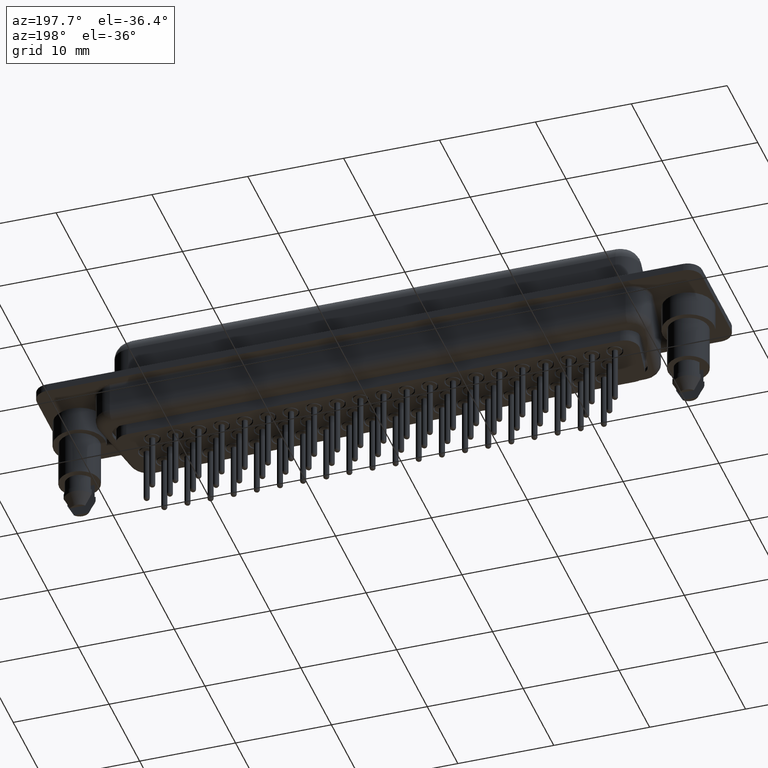
[diagram: clean part render]
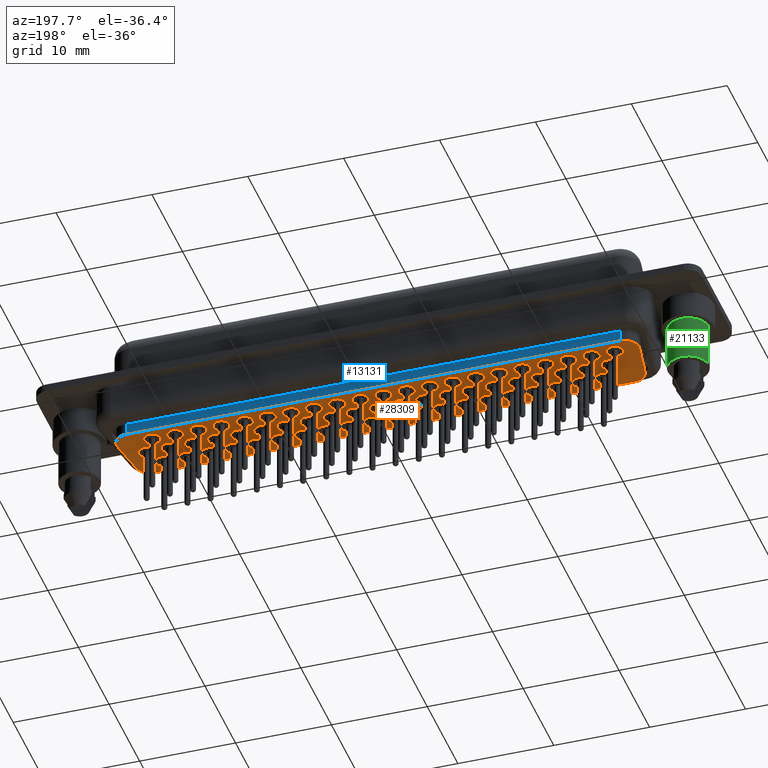
[diagram: same view with three faces highlighted in distinct colors, each labeled with its STEP entity id]
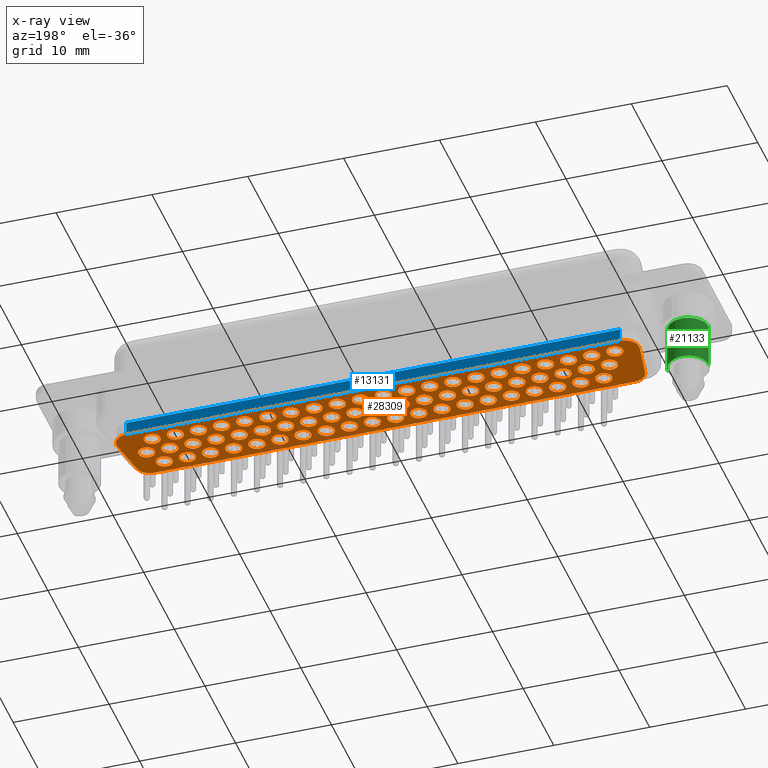
[diagram: x-ray of the same camera — body ghosted, the three highlighted faces saturated]
A machine part, auxiliary view with three faces highlighted in distinct colors.
The next image is the same camera in x-ray (body ghosted, the three faces saturated) — at least one of them is partly hidden behind the body in this view.
Their STEP definitions:

[orange] entity #28309 — the highlighted planar face has unit normal (0, 0, 1).
#2 = DIRECTION ( 'NONE',  ( 0.0000000000000000000, 0.0000000000000000000, -1.000000000000000000 ) ) ;
#4 = CARTESIAN_POINT ( 'NONE',  ( 37.55480000000001439, 1.979999999999997762, -5.500000000000000000 ) ) ;
#30 = AXIS2_PLACEMENT_3D ( 'NONE', #6025, #5643, #20327 ) ;
#48 = DIRECTION ( 'NONE',  ( 0.0000000000000000000, -0.0000000000000000000, 1.000000000000000000 ) ) ;
#80 = EDGE_CURVE ( 'NONE', #13756, #16273, #17759, .T. ) ;
#99 = CIRCLE ( 'NONE', #10198, 0.8500000000000000888 ) ;
#112 = CIRCLE ( 'NONE', #22052, 1.500000000000000444 ) ;
#168 = CARTESIAN_POINT ( 'NONE',  ( 20.30730000000002278, -4.432609089513841811E-15, -5.500000000000000000 ) ) ;
#179 = DIRECTION ( 'NONE',  ( 1.000000000000000000, 0.0000000000000000000, 0.0000000000000000000 ) ) ;
#196 = EDGE_CURVE ( 'NONE', #19016, #18114, #29525, .T. ) ;
#256 = CIRCLE ( 'NONE', #24054, 0.8500000000000000888 ) ;
#259 = DIRECTION ( 'NONE',  ( 1.000000000000000000, 0.0000000000000000000, 0.0000000000000000000 ) ) ;
#266 = DIRECTION ( 'NONE',  ( 1.000000000000000000, 0.0000000000000000000, 0.0000000000000000000 ) ) ;
#273 = AXIS2_PLACEMENT_3D ( 'NONE', #16627, #28537, #8196 ) ;
#302 = FACE_BOUND ( 'NONE', #36292, .T. ) ;
#381 = CARTESIAN_POINT ( 'NONE',  ( 23.57030000000002090, -4.137101816879585533E-15, -5.500000000000000000 ) ) ;
#392 = ORIENTED_EDGE ( 'NONE', *, *, #35037, .T. ) ;
#394 = CARTESIAN_POINT ( 'NONE',  ( 50.46979999999999933, 1.979999999999999538, -5.500000000000000000 ) ) ;
#396 = CARTESIAN_POINT ( 'NONE',  ( 52.88280000000000314, 1.979999999999999538, -5.500000000000000000 ) ) ;
#404 = CARTESIAN_POINT ( 'NONE',  ( 15.48130000000002404, -5.023623634782354368E-15, -5.500000000000000000 ) ) ;
#484 = EDGE_CURVE ( 'NONE', #12904, #15636, #36418, .T. ) ;
#489 = CIRCLE ( 'NONE', #22427, 0.8499999999999965361 ) ;
#491 = VERTEX_POINT ( 'NONE', #10990 ) ;
#534 = CIRCLE ( 'NONE', #17458, 0.8499999999999965361 ) ;
#568 = DIRECTION ( 'NONE',  ( 0.0000000000000000000, -0.0000000000000000000, 1.000000000000000000 ) ) ;
#569 = DIRECTION ( 'NONE',  ( 0.0000000000000000000, -0.0000000000000000000, 1.000000000000000000 ) ) ;
#631 = CIRCLE ( 'NONE', #30646, 0.8499999999999965361 ) ;
#669 = CARTESIAN_POINT ( 'NONE',  ( 46.49380000000000024, 1.979999999999998650, -5.500000000000000000 ) ) ;
#735 = VERTEX_POINT ( 'NONE', #33085 ) ;
#759 = DIRECTION ( 'NONE',  ( 0.0000000000000000000, -0.0000000000000000000, 1.000000000000000000 ) ) ;
#789 = EDGE_LOOP ( 'NONE', ( #11648, #21686 ) ) ;
#792 = CARTESIAN_POINT ( 'NONE',  ( 27.54630000000001644, -3.546087271611073765E-15, -5.500000000000000000 ) ) ;
#825 = DIRECTION ( 'NONE',  ( 1.000000000000000000, 0.0000000000000000000, 0.0000000000000000000 ) ) ;
#834 = AXIS2_PLACEMENT_3D ( 'NONE', #8481, #18064, #26478 ) ;
#856 = AXIS2_PLACEMENT_3D ( 'NONE', #23733, #568, #36395 ) ;
#858 = CARTESIAN_POINT ( 'NONE',  ( 27.90280000000001692, -1.980000000000001315, -5.500000000000000000 ) ) ;
#935 = CARTESIAN_POINT ( 'NONE',  ( 48.90679999999999694, -1.979999999999999094, -5.500000000000000000 ) ) ;
#945 = VERTEX_POINT ( 'NONE', #13148 ) ;
#958 = ORIENTED_EDGE ( 'NONE', *, *, #16393, .T. ) ;
#963 = CARTESIAN_POINT ( 'NONE',  ( 17.53780000000002204, 1.979999999999995319, -5.500000000000000000 ) ) ;
#981 = DIRECTION ( 'NONE',  ( 0.0000000000000000000, -0.0000000000000000000, 1.000000000000000000 ) ) ;
#989 = CARTESIAN_POINT ( 'NONE',  ( 20.30730000000002278, -4.432609089513841811E-15, -5.500000000000000000 ) ) ;
#1044 = DIRECTION ( 'NONE',  ( 1.000000000000000000, 0.0000000000000000000, 0.0000000000000000000 ) ) ;
#1071 = ORIENTED_EDGE ( 'NONE', *, *, #30705, .T. ) ;
#1149 = VERTEX_POINT ( 'NONE', #37791 ) ;
#1152 = DIRECTION ( 'NONE',  ( 1.000000000000000000, 0.0000000000000000000, 0.0000000000000000000 ) ) ;
#1239 = CARTESIAN_POINT ( 'NONE',  ( 20.66380000000001971, 1.979999999999995541, -5.500000000000000000 ) ) ;
#1291 = DIRECTION ( 'NONE',  ( 1.000000000000000000, 0.0000000000000000000, 0.0000000000000000000 ) ) ;
#1365 = CARTESIAN_POINT ( 'NONE',  ( 43.23080000000000922, 1.979999999999998650, -5.500000000000000000 ) ) ;
#1418 = DIRECTION ( 'NONE',  ( 1.000000000000000000, 0.0000000000000000000, 0.0000000000000000000 ) ) ;
#1498 = AXIS2_PLACEMENT_3D ( 'NONE', #28704, #14442, #23260 ) ;
#1509 = FACE_BOUND ( 'NONE', #8516, .T. ) ;
#1563 = CARTESIAN_POINT ( 'NONE',  ( 39.96780000000001110, -1.979999999999999982, -5.500000000000000000 ) ) ;
#1607 = VERTEX_POINT ( 'NONE', #669 ) ;
#1629 = ORIENTED_EDGE ( 'NONE', *, *, #36725, .T. ) ;
#1636 = AXIS2_PLACEMENT_3D ( 'NONE', #15589, #13419, #27517 ) ;
#1658 = CIRCLE ( 'NONE', #27922, 0.8500000000000000888 ) ;
#1694 = CIRCLE ( 'NONE', #23634, 0.8499999999999965361 ) ;
#1701 = FACE_BOUND ( 'NONE', #31528, .T. ) ;
#1704 = ORIENTED_EDGE ( 'NONE', *, *, #16012, .T. ) ;
#1711 = CARTESIAN_POINT ( 'NONE',  ( 55.65230000000000388, 1.040949779275252975E-16, -5.500000000000000000 ) ) ;
#1723 = EDGE_LOOP ( 'NONE', ( #17380, #5745, #36098, #26323, #34397, #32587, #30226, #33776, #1629 ) ) ;
#1724 = CARTESIAN_POINT ( 'NONE',  ( 19.45730000000002136, -4.328514111586317093E-15, -5.500000000000000000 ) ) ;
#1857 = DIRECTION ( 'NONE',  ( 0.0000000000000000000, -0.0000000000000000000, 1.000000000000000000 ) ) ;
#1913 = ORIENTED_EDGE ( 'NONE', *, *, #31781, .T. ) ;
#1925 = DIRECTION ( 'NONE',  ( 1.000000000000000000, -5.052756787988973582E-17, -0.0000000000000000000 ) ) ;
#1927 = CIRCLE ( 'NONE', #13850, 0.8500000000000000888 ) ;
#1946 = CARTESIAN_POINT ( 'NONE',  ( 17.89430000000002252, -4.728116362148098090E-15, -5.500000000000000000 ) ) ;
#1956 = EDGE_LOOP ( 'NONE', ( #7181, #30420 ) ) ;
#2011 = AXIS2_PLACEMENT_3D ( 'NONE', #792, #33884, #9638 ) ;
#2037 = AXIS2_PLACEMENT_3D ( 'NONE', #14213, #2638, #25936 ) ;
#2067 = DIRECTION ( 'NONE',  ( 0.0000000000000000000, -0.0000000000000000000, 1.000000000000000000 ) ) ;
#2089 = FACE_BOUND ( 'NONE', #37926, .T. ) ;
#2138 = ORIENTED_EDGE ( 'NONE', *, *, #17275, .T. ) ;
#2196 = DIRECTION ( 'NONE',  ( 0.0000000000000000000, -0.0000000000000000000, 1.000000000000000000 ) ) ;
#2297 = EDGE_CURVE ( 'NONE', #14975, #15268, #24981, .T. ) ;
#2300 = FACE_BOUND ( 'NONE', #30714, .T. ) ;
#2359 = VERTEX_POINT ( 'NONE', #6252 ) ;
#2370 = AXIS2_PLACEMENT_3D ( 'NONE', #10825, #20020, #28603 ) ;
#2392 = CARTESIAN_POINT ( 'NONE',  ( 46.85030000000000427, -1.182029090537024522E-15, -5.500000000000000000 ) ) ;
#2464 = LINE ( 'NONE', #20699, #22733 ) ;
#2495 = CARTESIAN_POINT ( 'NONE',  ( 44.79380000000001161, -1.979999999999999538, -5.500000000000000000 ) ) ;
#2498 = ORIENTED_EDGE ( 'NONE', *, *, #33686, .T. ) ;
#2526 = ORIENTED_EDGE ( 'NONE', *, *, #28976, .T. ) ;
#2534 = CARTESIAN_POINT ( 'NONE',  ( 49.61980000000000501, -1.979999999999998650, -5.500000000000000000 ) ) ;
#2591 = DIRECTION ( 'NONE',  ( 0.0000000000000000000, -0.0000000000000000000, 1.000000000000000000 ) ) ;
#2638 = DIRECTION ( 'NONE',  ( 0.0000000000000000000, -0.0000000000000000000, 1.000000000000000000 ) ) ;
#2652 = CIRCLE ( 'NONE', #23944, 0.8500000000000000888 ) ;
#2681 = DIRECTION ( 'NONE',  ( 1.000000000000000000, 0.0000000000000000000, 0.0000000000000000000 ) ) ;
#2686 = CIRCLE ( 'NONE', #25214, 0.8499999999999965361 ) ;
#2775 = ORIENTED_EDGE ( 'NONE', *, *, #27028, .T. ) ;
#2782 = DIRECTION ( 'NONE',  ( 1.000000000000000000, 0.0000000000000000000, 0.0000000000000000000 ) ) ;
#2787 = AXIS2_PLACEMENT_3D ( 'NONE', #28924, #5065, #4875 ) ;
#2875 = FACE_BOUND ( 'NONE', #32975, .T. ) ;
#2879 = CARTESIAN_POINT ( 'NONE',  ( 19.95080000000002229, 1.979999999999995541, -5.500000000000000000 ) ) ;
#2924 = ORIENTED_EDGE ( 'NONE', *, *, #17884, .T. ) ;
#2942 = CARTESIAN_POINT ( 'NONE',  ( 57.49916350763892581, 2.000000000000008882, -5.500000000000000000 ) ) ;
#3031 = CARTESIAN_POINT ( 'NONE',  ( 50.82630000000000337, -4.869195673409869514E-16, -5.500000000000000000 ) ) ;
#3048 = AXIS2_PLACEMENT_3D ( 'NONE', #26266, #19824, #11020 ) ;
#3068 = EDGE_LOOP ( 'NONE', ( #5025, #33436 ) ) ;
#3070 = FACE_OUTER_BOUND ( 'NONE', #1723, .T. ) ;
#3087 = EDGE_LOOP ( 'NONE', ( #23707, #2924 ) ) ;
#3091 = VERTEX_POINT ( 'NONE', #26309 ) ;
#3140 = DIRECTION ( 'NONE',  ( -1.000000000000000000, 0.0000000000000000000, 0.0000000000000000000 ) ) ;
#3157 = AXIS2_PLACEMENT_3D ( 'NONE', #4895, #16853, #21977 ) ;
#3171 = DIRECTION ( 'NONE',  ( 0.0000000000000000000, -0.0000000000000000000, 1.000000000000000000 ) ) ;
#3202 = VERTEX_POINT ( 'NONE', #26892 ) ;
#3251 = CIRCLE ( 'NONE', #34482, 0.8499999999999965361 ) ;
#3262 = CARTESIAN_POINT ( 'NONE',  ( 13.06830000000002556, -5.319130907416610647E-15, -5.500000000000000000 ) ) ;
#3268 = AXIS2_PLACEMENT_3D ( 'NONE', #20828, #32746, #32942 ) ;
#3271 = CARTESIAN_POINT ( 'NONE',  ( 47.70029999999999859, -1.182029090537024522E-15, -5.500000000000000000 ) ) ;
#3278 = ORIENTED_EDGE ( 'NONE', *, *, #26770, .T. ) ;
#3318 = CARTESIAN_POINT ( 'NONE',  ( 31.16580000000001505, -1.980000000000001315, -5.500000000000000000 ) ) ;
#3329 = EDGE_CURVE ( 'NONE', #18246, #19578, #32056, .T. ) ;
#3398 = DIRECTION ( 'NONE',  ( 0.0000000000000000000, -0.0000000000000000000, 1.000000000000000000 ) ) ;
#3406 = EDGE_LOOP ( 'NONE', ( #26818, #14836 ) ) ;
#3412 = ORIENTED_EDGE ( 'NONE', *, *, #33375, .T. ) ;
#3414 = CARTESIAN_POINT ( 'NONE',  ( 41.66780000000000683, 1.979999999999998206, -5.500000000000000000 ) ) ;
#3441 = CIRCLE ( 'NONE', #19685, 0.8500000000000000888 ) ;
#3472 = AXIS2_PLACEMENT_3D ( 'NONE', #4528, #24920, #34285 ) ;
#3488 = DIRECTION ( 'NONE',  ( 0.0000000000000000000, -0.0000000000000000000, 1.000000000000000000 ) ) ;
#3513 = CIRCLE ( 'NONE', #9382, 0.8499999999999965361 ) ;
#3515 = VERTEX_POINT ( 'NONE', #20208 ) ;
#3580 = EDGE_LOOP ( 'NONE', ( #4402, #2498 ) ) ;
#3598 = VERTEX_POINT ( 'NONE', #28601 ) ;
#3658 = CARTESIAN_POINT ( 'NONE',  ( 40.81780000000000541, -1.979999999999999982, -5.500000000000000000 ) ) ;
#3690 = DIRECTION ( 'NONE',  ( 0.0000000000000000000, -0.0000000000000000000, 1.000000000000000000 ) ) ;
#3739 = VERTEX_POINT ( 'NONE', #14530 ) ;
#3765 = EDGE_CURVE ( 'NONE', #4903, #22930, #32619, .T. ) ;
#3786 = ORIENTED_EDGE ( 'NONE', *, *, #9794, .T. ) ;
#3790 = EDGE_CURVE ( 'NONE', #35138, #3898, #99, .T. ) ;
#3809 = DIRECTION ( 'NONE',  ( 1.000000000000000000, 0.0000000000000000000, 0.0000000000000000000 ) ) ;
#3824 = ORIENTED_EDGE ( 'NONE', *, *, #34907, .T. ) ;
#3891 = CARTESIAN_POINT ( 'NONE',  ( 52.03280000000000172, -1.979999999999998650, -5.500000000000000000 ) ) ;
#3898 = VERTEX_POINT ( 'NONE', #963 ) ;
#3925 = EDGE_CURVE ( 'NONE', #14661, #34690, #34848, .T. ) ;
#3926 = ORIENTED_EDGE ( 'NONE', *, *, #4745, .T. ) ;
#3951 = CARTESIAN_POINT ( 'NONE',  ( 57.49916350763892581, 3.500000000000009326, -5.500000000000000000 ) ) ;
#3955 = DIRECTION ( 'NONE',  ( 0.0000000000000000000, -0.0000000000000000000, 1.000000000000000000 ) ) ;
#3989 = DIRECTION ( 'NONE',  ( 1.000000000000000000, 0.0000000000000000000, 0.0000000000000000000 ) ) ;
#4026 = CIRCLE ( 'NONE', #35921, 0.8499999999999965361 ) ;
#4033 = VERTEX_POINT ( 'NONE', #23510 ) ;
#4061 = CARTESIAN_POINT ( 'NONE',  ( 52.88280000000000314, -1.979999999999998650, -5.500000000000000000 ) ) ;
#4125 = CARTESIAN_POINT ( 'NONE',  ( 13.42480000000002427, -1.980000000000003535, -5.500000000000000000 ) ) ;
#4154 = VERTEX_POINT ( 'NONE', #35218 ) ;
#4196 = CIRCLE ( 'NONE', #19211, 0.8500000000000000888 ) ;
#4202 = DIRECTION ( 'NONE',  ( 1.000000000000000000, 0.0000000000000000000, 0.0000000000000000000 ) ) ;
#4334 = CARTESIAN_POINT ( 'NONE',  ( 43.23080000000000922, -1.979999999999999538, -5.500000000000000000 ) ) ;
#4369 = CARTESIAN_POINT ( 'NONE',  ( 43.23080000000000922, -1.979999999999999538, -5.500000000000000000 ) ) ;
#4388 = CIRCLE ( 'NONE', #8140, 0.8499999999999965361 ) ;
#4402 = ORIENTED_EDGE ( 'NONE', *, *, #13802, .T. ) ;
#4418 = CARTESIAN_POINT ( 'NONE',  ( 33.57880000000001530, -1.980000000000000870, -5.500000000000000000 ) ) ;
#4456 = FACE_BOUND ( 'NONE', #3406, .T. ) ;
#4489 = EDGE_CURVE ( 'NONE', #35273, #29439, #11554, .T. ) ;
#4528 = CARTESIAN_POINT ( 'NONE',  ( 35.99180000000001201, -1.980000000000000426, -5.500000000000000000 ) ) ;
#4574 = CIRCLE ( 'NONE', #32726, 0.8499999999999965361 ) ;
#4603 = CARTESIAN_POINT ( 'NONE',  ( 45.64380000000000592, -1.979999999999999538, -5.500000000000000000 ) ) ;
#4618 = CARTESIAN_POINT ( 'NONE',  ( 33.57880000000001530, -1.980000000000000870, -5.500000000000000000 ) ) ;
#4637 = ORIENTED_EDGE ( 'NONE', *, *, #19360, .T. ) ;
#4682 = CIRCLE ( 'NONE', #38448, 0.8499999999999965361 ) ;
#4686 = DIRECTION ( 'NONE',  ( 0.0000000000000000000, -0.0000000000000000000, 1.000000000000000000 ) ) ;
#4738 = CIRCLE ( 'NONE', #27221, 0.8500000000000000888 ) ;
#4745 = EDGE_CURVE ( 'NONE', #16562, #9353, #4388, .T. ) ;
#4819 = CIRCLE ( 'NONE', #11719, 0.8500000000000000888 ) ;
#4826 = EDGE_CURVE ( 'NONE', #6442, #30453, #631, .T. ) ;
#4850 = CARTESIAN_POINT ( 'NONE',  ( 48.41330000000000666, -7.824268399752431313E-16, -5.500000000000000000 ) ) ;
#4875 = DIRECTION ( 'NONE',  ( 1.000000000000000000, 0.0000000000000000000, 0.0000000000000000000 ) ) ;
#4895 = CARTESIAN_POINT ( 'NONE',  ( 8.242300000000028604, -5.910145452685123204E-15, -5.500000000000000000 ) ) ;
#4903 = VERTEX_POINT ( 'NONE', #29204 ) ;
#4920 = ORIENTED_EDGE ( 'NONE', *, *, #9892, .T. ) ;
#4933 = AXIS2_PLACEMENT_3D ( 'NONE', #33117, #35850, #30167 ) ;
#4987 = DIRECTION ( 'NONE',  ( 0.0000000000000000000, -0.0000000000000000000, 1.000000000000000000 ) ) ;
#4996 = CIRCLE ( 'NONE', #26880, 0.8499999999999965361 ) ;
#5015 = VERTEX_POINT ( 'NONE', #14734 ) ;
#5020 = ORIENTED_EDGE ( 'NONE', *, *, #19491, .T. ) ;
#5025 = ORIENTED_EDGE ( 'NONE', *, *, #23842, .T. ) ;
#5038 = EDGE_CURVE ( 'NONE', #13326, #10299, #34935, .T. ) ;
#5043 = FACE_BOUND ( 'NONE', #16465, .T. ) ;
#5057 = CARTESIAN_POINT ( 'NONE',  ( 19.10080000000002087, 1.979999999999995541, -5.500000000000000000 ) ) ;
#5065 = DIRECTION ( 'NONE',  ( 0.0000000000000000000, -0.0000000000000000000, 1.000000000000000000 ) ) ;
#5086 = EDGE_CURVE ( 'NONE', #23038, #2359, #16336, .T. ) ;
#5108 = EDGE_CURVE ( 'NONE', #30453, #6442, #16309, .T. ) ;
#5134 = CARTESIAN_POINT ( 'NONE',  ( 36.34830000000001604, -2.259963203146523932E-15, -5.500000000000000000 ) ) ;
#5213 = AXIS2_PLACEMENT_3D ( 'NONE', #26461, #29581, #34871 ) ;
#5226 = VERTEX_POINT ( 'NONE', #2534 ) ;
#5244 = FACE_BOUND ( 'NONE', #22616, .T. ) ;
#5307 = ORIENTED_EDGE ( 'NONE', *, *, #23110, .T. ) ;
#5336 = EDGE_LOOP ( 'NONE', ( #35941, #33965 ) ) ;
#5338 = DIRECTION ( 'NONE',  ( 0.0000000000000000000, -0.0000000000000000000, 1.000000000000000000 ) ) ;
#5342 = EDGE_LOOP ( 'NONE', ( #8033, #28224 ) ) ;
#5344 = VERTEX_POINT ( 'NONE', #37384 ) ;
#5351 = CARTESIAN_POINT ( 'NONE',  ( 56.14579999999999416, -1.979999999999998206, -5.500000000000000000 ) ) ;
#5403 = DIRECTION ( 'NONE',  ( 0.0000000000000000000, -0.0000000000000000000, 1.000000000000000000 ) ) ;
#5425 = VERTEX_POINT ( 'NONE', #18197 ) ;
#5439 = AXIS2_PLACEMENT_3D ( 'NONE', #26888, #48, #21041 ) ;
#5471 = DIRECTION ( 'NONE',  ( 1.000000000000000000, 0.0000000000000000000, 0.0000000000000000000 ) ) ;
#5504 = VERTEX_POINT ( 'NONE', #9205 ) ;
#5532 = CIRCLE ( 'NONE', #27388, 0.8499999999999965361 ) ;
#5586 = EDGE_LOOP ( 'NONE', ( #3278, #36669 ) ) ;
#5643 = DIRECTION ( 'NONE',  ( 0.0000000000000000000, -0.0000000000000000000, 1.000000000000000000 ) ) ;
#5662 = AXIS2_PLACEMENT_3D ( 'NONE', #396, #36237, #6119 ) ;
#5680 = AXIS2_PLACEMENT_3D ( 'NONE', #12476, #21301, #27699 ) ;
#5709 = CARTESIAN_POINT ( 'NONE',  ( 17.89430000000002252, -4.728116362148098090E-15, -5.500000000000000000 ) ) ;
#5711 = CIRCLE ( 'NONE', #18217, 0.8500000000000000888 ) ;
#5712 = CIRCLE ( 'NONE', #22600, 0.8500000000000000888 ) ;
#5745 = ORIENTED_EDGE ( 'NONE', *, *, #29752, .T. ) ;
#5756 = AXIS2_PLACEMENT_3D ( 'NONE', #27590, #759, #24678 ) ;
#5783 = CARTESIAN_POINT ( 'NONE',  ( 44.08080000000000354, -1.979999999999999538, -5.500000000000000000 ) ) ;
#5798 = CARTESIAN_POINT ( 'NONE',  ( 42.38080000000000780, -1.979999999999999538, -5.500000000000000000 ) ) ;
#5817 = ORIENTED_EDGE ( 'NONE', *, *, #33770, .T. ) ;
#5845 = AXIS2_PLACEMENT_3D ( 'NONE', #32699, #36010, #12345 ) ;
#5865 = ORIENTED_EDGE ( 'NONE', *, *, #34852, .T. ) ;
#5918 = DIRECTION ( 'NONE',  ( 0.0000000000000000000, -0.0000000000000000000, 1.000000000000000000 ) ) ;
#5945 = CARTESIAN_POINT ( 'NONE',  ( 33.93530000000001223, -2.555470475780780211E-15, -5.500000000000000000 ) ) ;
#5959 = VERTEX_POINT ( 'NONE', #28348 ) ;
#5980 = AXIS2_PLACEMENT_3D ( 'NONE', #18086, #33147, #24532 ) ;
#6002 = EDGE_CURVE ( 'NONE', #31863, #38310, #28849, .T. ) ;
#6025 = CARTESIAN_POINT ( 'NONE',  ( 6.000836492361083074, 2.000000000000011546, -5.500000000000000000 ) ) ;
#6066 = AXIS2_PLACEMENT_3D ( 'NONE', #13861, #37736, #25790 ) ;
#6119 = DIRECTION ( 'NONE',  ( 1.000000000000000000, 0.0000000000000000000, 0.0000000000000000000 ) ) ;
#6132 = ORIENTED_EDGE ( 'NONE', *, *, #17007, .T. ) ;
#6220 = CIRCLE ( 'NONE', #21205, 0.8500000000000000888 ) ;
#6252 = CARTESIAN_POINT ( 'NONE',  ( 51.31980000000000075, 1.979999999999999538, -5.500000000000000000 ) ) ;
#6263 = CARTESIAN_POINT ( 'NONE',  ( 32.01580000000001291, 1.979999999999996874, -5.500000000000000000 ) ) ;
#6324 = CIRCLE ( 'NONE', #5680, 0.8500000000000000888 ) ;
#6372 = DIRECTION ( 'NONE',  ( 0.0000000000000000000, -0.0000000000000000000, 1.000000000000000000 ) ) ;
#6384 = ORIENTED_EDGE ( 'NONE', *, *, #32188, .T. ) ;
#6390 = EDGE_CURVE ( 'NONE', #5425, #5015, #14527, .T. ) ;
#6440 = CARTESIAN_POINT ( 'NONE',  ( 6.000836492361084851, 3.500000000000011990, -5.500000000000000000 ) ) ;
#6442 = VERTEX_POINT ( 'NONE', #22668 ) ;
#6468 = EDGE_CURVE ( 'NONE', #22451, #11418, #8262, .T. ) ;
#6481 = CIRCLE ( 'NONE', #26454, 0.8499999999999965361 ) ;
#6544 = CARTESIAN_POINT ( 'NONE',  ( 11.86180000000002721, -1.980000000000003535, -5.500000000000000000 ) ) ;
#6613 = VERTEX_POINT ( 'NONE', #17381 ) ;
#6617 = DIRECTION ( 'NONE',  ( 0.0000000000000000000, -0.0000000000000000000, 1.000000000000000000 ) ) ;
#6618 = CIRCLE ( 'NONE', #9747, 0.8500000000000000888 ) ;
#6630 = CARTESIAN_POINT ( 'NONE',  ( 50.46979999999999933, -1.979999999999998650, -5.500000000000000000 ) ) ;
#6644 = ORIENTED_EDGE ( 'NONE', *, *, #17691, .T. ) ;
#6647 = DIRECTION ( 'NONE',  ( 1.000000000000000000, 0.0000000000000000000, 0.0000000000000000000 ) ) ;
#6666 = AXIS2_PLACEMENT_3D ( 'NONE', #3318, #18959, #30135 ) ;
#6692 = CARTESIAN_POINT ( 'NONE',  ( 25.48980000000001667, -1.980000000000001759, -5.500000000000000000 ) ) ;
#6718 = AXIS2_PLACEMENT_3D ( 'NONE', #28930, #4686, #5471 ) ;
#6728 = VERTEX_POINT ( 'NONE', #23451 ) ;
#6783 = ORIENTED_EDGE ( 'NONE', *, *, #31324, .T. ) ;
#6797 = DIRECTION ( 'NONE',  ( 1.000000000000000000, 0.0000000000000000000, 0.0000000000000000000 ) ) ;
#6801 = VERTEX_POINT ( 'NONE', #25678 ) ;
#6843 = CARTESIAN_POINT ( 'NONE',  ( 9.448800000000028732, 1.979999999999994431, -5.500000000000000000 ) ) ;
#6930 = EDGE_LOOP ( 'NONE', ( #8229, #26632 ) ) ;
#6938 = DIRECTION ( 'NONE',  ( 0.0000000000000000000, -0.0000000000000000000, 1.000000000000000000 ) ) ;
#6959 = ORIENTED_EDGE ( 'NONE', *, *, #2297, .T. ) ;
#6978 = DIRECTION ( 'NONE',  ( -0.0000000000000000000, 0.0000000000000000000, -1.000000000000000000 ) ) ;
#7014 = AXIS2_PLACEMENT_3D ( 'NONE', #12770, #25093, #21803 ) ;
#7034 = EDGE_CURVE ( 'NONE', #16765, #26987, #12707, .T. ) ;
#7047 = EDGE_LOOP ( 'NONE', ( #14852, #6644 ) ) ;
#7051 = CARTESIAN_POINT ( 'NONE',  ( 53.73279999999999745, -1.979999999999998650, -5.500000000000000000 ) ) ;
#7119 = EDGE_LOOP ( 'NONE', ( #37834, #1071 ) ) ;
#7121 = DIRECTION ( 'NONE',  ( 0.0000000000000000000, -0.0000000000000000000, 1.000000000000000000 ) ) ;
#7150 = VERTEX_POINT ( 'NONE', #33285 ) ;
#7159 = EDGE_CURVE ( 'NONE', #19804, #26068, #2686, .T. ) ;
#7181 = ORIENTED_EDGE ( 'NONE', *, *, #31476, .T. ) ;
#7192 = CARTESIAN_POINT ( 'NONE',  ( 42.02430000000001087, -1.773043635805536882E-15, -5.500000000000000000 ) ) ;
#7276 = AXIS2_PLACEMENT_3D ( 'NONE', #19103, #12657, #24603 ) ;
#7311 = CIRCLE ( 'NONE', #8583, 0.8500000000000000888 ) ;
#7407 = FACE_BOUND ( 'NONE', #31698, .T. ) ;
#7483 = DIRECTION ( 'NONE',  ( 0.0000000000000000000, -0.0000000000000000000, 1.000000000000000000 ) ) ;
#7490 = DIRECTION ( 'NONE',  ( 0.0000000000000000000, -0.0000000000000000000, 1.000000000000000000 ) ) ;
#7547 = AXIS2_PLACEMENT_3D ( 'NONE', #8822, #32492, #35036 ) ;
#7593 = FACE_BOUND ( 'NONE', #22445, .T. ) ;
#7608 = VERTEX_POINT ( 'NONE', #36367 ) ;
#7670 = DIRECTION ( 'NONE',  ( 1.000000000000000000, 0.0000000000000000000, 0.0000000000000000000 ) ) ;
#7675 = AXIS2_PLACEMENT_3D ( 'NONE', #25264, #17052, #28569 ) ;
#7736 = DIRECTION ( 'NONE',  ( 0.0000000000000000000, -0.0000000000000000000, 1.000000000000000000 ) ) ;
#7745 = VERTEX_POINT ( 'NONE', #19339 ) ;
#7750 = CARTESIAN_POINT ( 'NONE',  ( 28.75280000000001479, -1.980000000000001315, -5.500000000000000000 ) ) ;
#7779 = FACE_BOUND ( 'NONE', #33599, .T. ) ;
#7786 = DIRECTION ( 'NONE',  ( 1.000000000000000000, 0.0000000000000000000, 0.0000000000000000000 ) ) ;
#7836 = DIRECTION ( 'NONE',  ( 1.000000000000000000, 0.0000000000000000000, 0.0000000000000000000 ) ) ;
#7849 = DIRECTION ( 'NONE',  ( 0.0000000000000000000, -0.0000000000000000000, 1.000000000000000000 ) ) ;
#7908 = AXIS2_PLACEMENT_3D ( 'NONE', #14765, #35113, #37858 ) ;
#7919 = EDGE_LOOP ( 'NONE', ( #22039, #24039 ) ) ;
#7937 = CARTESIAN_POINT ( 'NONE',  ( 36.84180000000000632, -1.980000000000000426, -5.500000000000000000 ) ) ;
#7963 = ORIENTED_EDGE ( 'NONE', *, *, #36820, .T. ) ;
#7979 = EDGE_CURVE ( 'NONE', #37337, #38149, #17159, .T. ) ;
#7981 = FACE_BOUND ( 'NONE', #36704, .T. ) ;
#8033 = ORIENTED_EDGE ( 'NONE', *, *, #5038, .T. ) ;
#8047 = CARTESIAN_POINT ( 'NONE',  ( 7.035800000000029364, 1.979999999999993987, -5.500000000000000000 ) ) ;
#8122 = EDGE_LOOP ( 'NONE', ( #25148, #3824 ) ) ;
#8140 = AXIS2_PLACEMENT_3D ( 'NONE', #22593, #27649, #825 ) ;
#8157 = ORIENTED_EDGE ( 'NONE', *, *, #27071, .T. ) ;
#8166 = DIRECTION ( 'NONE',  ( 0.0000000000000000000, -0.0000000000000000000, 1.000000000000000000 ) ) ;
#8189 = DIRECTION ( 'NONE',  ( 1.000000000000000000, 0.0000000000000000000, 0.0000000000000000000 ) ) ;
#8196 = DIRECTION ( 'NONE',  ( 1.000000000000000000, 0.0000000000000000000, 0.0000000000000000000 ) ) ;
#8229 = ORIENTED_EDGE ( 'NONE', *, *, #19849, .T. ) ;
#8262 = CIRCLE ( 'NONE', #35133, 0.8499999999999965361 ) ;
#8367 = DIRECTION ( 'NONE',  ( 1.000000000000000000, 0.0000000000000000000, 0.0000000000000000000 ) ) ;
#8381 = DIRECTION ( 'NONE',  ( 0.0000000000000000000, -0.0000000000000000000, 1.000000000000000000 ) ) ;
#8389 = DIRECTION ( 'NONE',  ( 1.000000000000000000, 0.0000000000000000000, 0.0000000000000000000 ) ) ;
#8448 = DIRECTION ( 'NONE',  ( 1.000000000000000000, 0.0000000000000000000, 0.0000000000000000000 ) ) ;
#8458 = EDGE_CURVE ( 'NONE', #26031, #11230, #14666, .T. ) ;
#8476 = VERTEX_POINT ( 'NONE', #23983 ) ;
#8481 = CARTESIAN_POINT ( 'NONE',  ( 23.92680000000001783, 1.979999999999995985, -5.500000000000000000 ) ) ;
#8509 = ORIENTED_EDGE ( 'NONE', *, *, #16587, .T. ) ;
#8516 = EDGE_LOOP ( 'NONE', ( #20700, #35598 ) ) ;
#8521 = DIRECTION ( 'NONE',  ( 0.0000000000000000000, -0.0000000000000000000, 1.000000000000000000 ) ) ;
#8583 = AXIS2_PLACEMENT_3D ( 'NONE', #168, #9585, #6647 ) ;
#8587 = CARTESIAN_POINT ( 'NONE',  ( 54.44580000000000553, 1.979999999999999982, -5.500000000000000000 ) ) ;
#8626 = CIRCLE ( 'NONE', #29873, 0.8500000000000000888 ) ;
#8629 = CARTESIAN_POINT ( 'NONE',  ( 45.64380000000000592, -1.979999999999999538, -5.500000000000000000 ) ) ;
#8669 = CARTESIAN_POINT ( 'NONE',  ( 46.85030000000000427, -1.182029090537024522E-15, -5.500000000000000000 ) ) ;
#8692 = CARTESIAN_POINT ( 'NONE',  ( 18.25080000000002300, 1.979999999999995541, -5.500000000000000000 ) ) ;
#8822 = CARTESIAN_POINT ( 'NONE',  ( 40.81780000000000541, 1.979999999999998206, -5.500000000000000000 ) ) ;
#8873 = CIRCLE ( 'NONE', #33215, 0.8500000000000000888 ) ;
#8912 = ORIENTED_EDGE ( 'NONE', *, *, #35770, .T. ) ;
#8926 = CIRCLE ( 'NONE', #31995, 0.8500000000000000888 ) ;
#8952 = AXIS2_PLACEMENT_3D ( 'NONE', #20852, #22017, #30767 ) ;
#8972 = DIRECTION ( 'NONE',  ( 1.000000000000000000, 0.0000000000000000000, 0.0000000000000000000 ) ) ;
#9001 = CARTESIAN_POINT ( 'NONE',  ( 35.14180000000001769, 1.979999999999997762, -5.500000000000000000 ) ) ;
#9045 = VERTEX_POINT ( 'NONE', #9001 ) ;
#9090 = EDGE_CURVE ( 'NONE', #19578, #18246, #37217, .T. ) ;
#9205 = CARTESIAN_POINT ( 'NONE',  ( 6.706144415194948749, -3.499999999999988454, -5.500000000000000000 ) ) ;
#9207 = CARTESIAN_POINT ( 'NONE',  ( 47.20680000000000831, -1.979999999999999094, -5.500000000000000000 ) ) ;
#9353 = VERTEX_POINT ( 'NONE', #4850 ) ;
#9361 = VERTEX_POINT ( 'NONE', #10930 ) ;
#9368 = ORIENTED_EDGE ( 'NONE', *, *, #36058, .T. ) ;
#9382 = AXIS2_PLACEMENT_3D ( 'NONE', #37920, #8166, #8367 ) ;
#9498 = CIRCLE ( 'NONE', #31339, 0.8499999999999965361 ) ;
#9533 = CARTESIAN_POINT ( 'NONE',  ( 57.35229999999999251, 0.0000000000000000000, -5.500000000000000000 ) ) ;
#9581 = CIRCLE ( 'NONE', #2037, 0.8499999999999965361 ) ;
#9585 = DIRECTION ( 'NONE',  ( 0.0000000000000000000, -0.0000000000000000000, 1.000000000000000000 ) ) ;
#9588 = CARTESIAN_POINT ( 'NONE',  ( 38.76130000000001274, -1.964455930512267654E-15, -5.500000000000000000 ) ) ;
#9607 = CARTESIAN_POINT ( 'NONE',  ( 21.15730000000002065, -4.432609089513841811E-15, -5.500000000000000000 ) ) ;
#9624 = VERTEX_POINT ( 'NONE', #9718 ) ;
#9638 = DIRECTION ( 'NONE',  ( 1.000000000000000000, 0.0000000000000000000, 0.0000000000000000000 ) ) ;
#9690 = CARTESIAN_POINT ( 'NONE',  ( 34.78530000000001365, -2.659565453708305323E-15, -5.500000000000000000 ) ) ;
#9718 = CARTESIAN_POINT ( 'NONE',  ( 32.72880000000001388, -1.980000000000000870, -5.500000000000000000 ) ) ;
#9735 = CARTESIAN_POINT ( 'NONE',  ( 49.61980000000000501, 1.979999999999999538, -5.500000000000000000 ) ) ;
#9741 = EDGE_CURVE ( 'NONE', #37677, #3739, #12296, .T. ) ;
#9744 = EDGE_CURVE ( 'NONE', #25584, #7745, #11690, .T. ) ;
#9747 = AXIS2_PLACEMENT_3D ( 'NONE', #31654, #22690, #7786 ) ;
#9794 = EDGE_CURVE ( 'NONE', #38391, #10987, #28513, .T. ) ;
#9873 = CARTESIAN_POINT ( 'NONE',  ( 45.64380000000000592, 1.979999999999998650, -5.500000000000000000 ) ) ;
#9880 = DIRECTION ( 'NONE',  ( 0.0000000000000000000, -0.0000000000000000000, 1.000000000000000000 ) ) ;
#9886 = CARTESIAN_POINT ( 'NONE',  ( 19.10080000000002087, 1.979999999999995541, -5.500000000000000000 ) ) ;
#9892 = EDGE_CURVE ( 'NONE', #16273, #13756, #26672, .T. ) ;
#9999 = CARTESIAN_POINT ( 'NONE',  ( 7.035800000000029364, 1.979999999999993987, -5.500000000000000000 ) ) ;
#10044 = EDGE_CURVE ( 'NONE', #22587, #13536, #34146, .T. ) ;
#10077 = CARTESIAN_POINT ( 'NONE',  ( 42.38080000000000780, 1.979999999999998650, -5.500000000000000000 ) ) ;
#10088 = AXIS2_PLACEMENT_3D ( 'NONE', #1365, #981, #259 ) ;
#10190 = CIRCLE ( 'NONE', #23351, 0.8499999999999965361 ) ;
#10198 = AXIS2_PLACEMENT_3D ( 'NONE', #14727, #5918, #21000 ) ;
#10260 = VERTEX_POINT ( 'NONE', #32562 ) ;
#10296 = CIRCLE ( 'NONE', #28395, 0.8500000000000000888 ) ;
#10299 = VERTEX_POINT ( 'NONE', #36448 ) ;
#10312 = AXIS2_PLACEMENT_3D ( 'NONE', #32204, #32801, #26146 ) ;
#10376 = CIRCLE ( 'NONE', #29103, 0.8500000000000000888 ) ;
#10389 = CIRCLE ( 'NONE', #22292, 0.8500000000000000888 ) ;
#10442 = ORIENTED_EDGE ( 'NONE', *, *, #27431, .T. ) ;
#10499 = VERTEX_POINT ( 'NONE', #16110 ) ;
#10503 = CARTESIAN_POINT ( 'NONE',  ( 37.55480000000001439, -1.980000000000000426, -5.500000000000000000 ) ) ;
#10547 = CARTESIAN_POINT ( 'NONE',  ( 31.16580000000001505, 1.979999999999996874, -5.500000000000000000 ) ) ;
#10623 = CARTESIAN_POINT ( 'NONE',  ( 26.33980000000001809, 1.979999999999996430, -5.500000000000000000 ) ) ;
#10637 = ORIENTED_EDGE ( 'NONE', *, *, #5108, .T. ) ;
#10642 = ORIENTED_EDGE ( 'NONE', *, *, #3765, .T. ) ;
#10644 = ORIENTED_EDGE ( 'NONE', *, *, #15007, .T. ) ;
#10679 = CARTESIAN_POINT ( 'NONE',  ( 44.43730000000000757, -1.477536363171280801E-15, -5.500000000000000000 ) ) ;
#10699 = CARTESIAN_POINT ( 'NONE',  ( 22.36380000000001900, -1.980000000000002647, -5.500000000000000000 ) ) ;
#10710 = CARTESIAN_POINT ( 'NONE',  ( 38.04830000000000467, -2.364058181074049045E-15, -5.500000000000000000 ) ) ;
#10733 = FACE_BOUND ( 'NONE', #6930, .T. ) ;
#10825 = CARTESIAN_POINT ( 'NONE',  ( 6.706144415194948749, -1.999999999999988232, -5.500000000000000000 ) ) ;
#10867 = CIRCLE ( 'NONE', #15859, 0.8499999999999965361 ) ;
#10902 = CIRCLE ( 'NONE', #10312, 0.8499999999999965361 ) ;
#10905 = CARTESIAN_POINT ( 'NONE',  ( 55.29579999999999984, -1.979999999999998206, -5.500000000000000000 ) ) ;
#10910 = AXIS2_PLACEMENT_3D ( 'NONE', #34728, #37869, #17530 ) ;
#10930 = CARTESIAN_POINT ( 'NONE',  ( 15.83780000000002275, -1.980000000000003091, -5.500000000000000000 ) ) ;
#10933 = FACE_BOUND ( 'NONE', #13042, .T. ) ;
#10946 = EDGE_CURVE ( 'NONE', #9361, #26861, #16030, .T. ) ;
#10987 = VERTEX_POINT ( 'NONE', #17178 ) ;
#10990 = CARTESIAN_POINT ( 'NONE',  ( 56.14579999999999416, 1.979999999999999982, -5.500000000000000000 ) ) ;
#11020 = DIRECTION ( 'NONE',  ( 1.000000000000000000, 0.0000000000000000000, 0.0000000000000000000 ) ) ;
#11024 = CARTESIAN_POINT ( 'NONE',  ( 43.58730000000000615, -1.373441385243755294E-15, -5.500000000000000000 ) ) ;
#11130 = FACE_BOUND ( 'NONE', #21642, .T. ) ;
#11139 = CARTESIAN_POINT ( 'NONE',  ( 23.92680000000001783, -1.980000000000002203, -5.500000000000000000 ) ) ;
#11193 = DIRECTION ( 'NONE',  ( 1.000000000000000000, 0.0000000000000000000, 0.0000000000000000000 ) ) ;
#11209 = DIRECTION ( 'NONE',  ( 0.0000000000000000000, -0.0000000000000000000, 1.000000000000000000 ) ) ;
#11227 = VERTEX_POINT ( 'NONE', #858 ) ;
#11230 = VERTEX_POINT ( 'NONE', #24403 ) ;
#11233 = CARTESIAN_POINT ( 'NONE',  ( 19.95080000000002229, -1.980000000000002647, -5.500000000000000000 ) ) ;
#11240 = DIRECTION ( 'NONE',  ( 1.000000000000000000, 0.0000000000000000000, 0.0000000000000000000 ) ) ;
#11261 = VERTEX_POINT ( 'NONE', #37662 ) ;
#11268 = ORIENTED_EDGE ( 'NONE', *, *, #20156, .T. ) ;
#11318 = FACE_BOUND ( 'NONE', #34890, .T. ) ;
#11350 = CARTESIAN_POINT ( 'NONE',  ( 58.27106721432336656, -2.260472266500390237, -5.500000000000000000 ) ) ;
#11376 = CARTESIAN_POINT ( 'NONE',  ( 54.08930000000000149, -3.615820393792256597E-16, -5.500000000000000000 ) ) ;
#11379 = VERTEX_POINT ( 'NONE', #28062 ) ;
#11410 = ORIENTED_EDGE ( 'NONE', *, *, #35858, .T. ) ;
#11418 = VERTEX_POINT ( 'NONE', #26502 ) ;
#11436 = CARTESIAN_POINT ( 'NONE',  ( 40.46130000000000848, -2.068550908439792766E-15, -5.500000000000000000 ) ) ;
#11446 = EDGE_LOOP ( 'NONE', ( #35025, #25094 ) ) ;
#11461 = EDGE_CURVE ( 'NONE', #29439, #35273, #32302, .T. ) ;
#11473 = CARTESIAN_POINT ( 'NONE',  ( 50.46979999999999933, 1.979999999999999538, -5.500000000000000000 ) ) ;
#11507 = ORIENTED_EDGE ( 'NONE', *, *, #24500, .T. ) ;
#11513 = PLANE ( 'NONE',  #30 ) ;
#11554 = CIRCLE ( 'NONE', #10910, 0.8499999999999965361 ) ;
#11568 = DIRECTION ( 'NONE',  ( 0.0000000000000000000, -0.0000000000000000000, 1.000000000000000000 ) ) ;
#11600 = EDGE_CURVE ( 'NONE', #34835, #15154, #31644, .T. ) ;
#11605 = EDGE_CURVE ( 'NONE', #11230, #26031, #34783, .T. ) ;
#11610 = DIRECTION ( 'NONE',  ( 1.000000000000000000, 0.0000000000000000000, 0.0000000000000000000 ) ) ;
#11648 = ORIENTED_EDGE ( 'NONE', *, *, #28280, .T. ) ;
#11681 = CARTESIAN_POINT ( 'NONE',  ( 16.33130000000002369, -5.023623634782354368E-15, -5.500000000000000000 ) ) ;
#11686 = VERTEX_POINT ( 'NONE', #27636 ) ;
#11690 = CIRCLE ( 'NONE', #7276, 0.8500000000000000888 ) ;
#11706 = EDGE_LOOP ( 'NONE', ( #16999, #12516 ) ) ;
#11719 = AXIS2_PLACEMENT_3D ( 'NONE', #6843, #27751, #12717 ) ;
#11737 = EDGE_CURVE ( 'NONE', #10260, #3598, #1658, .T. ) ;
#11825 = DIRECTION ( 'NONE',  ( 0.0000000000000000000, -0.0000000000000000000, 1.000000000000000000 ) ) ;
#11907 = EDGE_CURVE ( 'NONE', #21608, #31942, #29819, .T. ) ;
#11933 = EDGE_LOOP ( 'NONE', ( #29346, #27763 ) ) ;
#11990 = VERTEX_POINT ( 'NONE', #381 ) ;
#11997 = VERTEX_POINT ( 'NONE', #14721 ) ;
#12042 = VERTEX_POINT ( 'NONE', #9607 ) ;
#12058 = CARTESIAN_POINT ( 'NONE',  ( 10.29880000000002838, -1.980000000000003979, -5.500000000000000000 ) ) ;
#12158 = DIRECTION ( 'NONE',  ( 1.000000000000000000, 0.0000000000000000000, 0.0000000000000000000 ) ) ;
#12159 = CIRCLE ( 'NONE', #29629, 0.8499999999999965361 ) ;
#12193 = DIRECTION ( 'NONE',  ( 0.0000000000000000000, -0.0000000000000000000, 1.000000000000000000 ) ) ;
#12246 = ORIENTED_EDGE ( 'NONE', *, *, #19664, .T. ) ;
#12287 = FACE_BOUND ( 'NONE', #8122, .T. ) ;
#12296 = CIRCLE ( 'NONE', #1636, 0.8499999999999965361 ) ;
#12345 = DIRECTION ( 'NONE',  ( 1.000000000000000000, 0.0000000000000000000, 0.0000000000000000000 ) ) ;
#12353 = CIRCLE ( 'NONE', #29119, 0.8499999999999965361 ) ;
#12355 = AXIS2_PLACEMENT_3D ( 'NONE', #38529, #23862, #8389 ) ;
#12359 = EDGE_CURVE ( 'NONE', #16823, #21978, #36107, .T. ) ;
#12383 = DIRECTION ( 'NONE',  ( 0.0000000000000000000, -0.0000000000000000000, 1.000000000000000000 ) ) ;
#12384 = EDGE_CURVE ( 'NONE', #13958, #20546, #28741, .T. ) ;
#12439 = ORIENTED_EDGE ( 'NONE', *, *, #35982, .T. ) ;
#12476 = CARTESIAN_POINT ( 'NONE',  ( 13.06830000000002556, -5.319130907416610647E-15, -5.500000000000000000 ) ) ;
#12494 = ORIENTED_EDGE ( 'NONE', *, *, #196, .T. ) ;
#12497 = CARTESIAN_POINT ( 'NONE',  ( 11.86180000000002721, 1.979999999999994875, -5.500000000000000000 ) ) ;
#12516 = ORIENTED_EDGE ( 'NONE', *, *, #3925, .T. ) ;
#12553 = CARTESIAN_POINT ( 'NONE',  ( 37.19830000000001036, -2.364058181074049045E-15, -5.500000000000000000 ) ) ;
#12646 = EDGE_CURVE ( 'NONE', #11261, #15756, #38012, .T. ) ;
#12657 = DIRECTION ( 'NONE',  ( 0.0000000000000000000, -0.0000000000000000000, 1.000000000000000000 ) ) ;
#12686 = ORIENTED_EDGE ( 'NONE', *, *, #7159, .T. ) ;
#12707 = CIRCLE ( 'NONE', #5213, 0.8500000000000000888 ) ;
#12717 = DIRECTION ( 'NONE',  ( 1.000000000000000000, 0.0000000000000000000, 0.0000000000000000000 ) ) ;
#12770 = CARTESIAN_POINT ( 'NONE',  ( 11.86180000000002721, 1.979999999999994875, -5.500000000000000000 ) ) ;
#12771 = ORIENTED_EDGE ( 'NONE', *, *, #34293, .T. ) ;
#12795 = CARTESIAN_POINT ( 'NONE',  ( 24.77680000000001925, -1.980000000000002203, -5.500000000000000000 ) ) ;
#12819 = CARTESIAN_POINT ( 'NONE',  ( 48.05680000000000263, 1.979999999999999094, -5.500000000000000000 ) ) ;
#12867 = DIRECTION ( 'NONE',  ( 1.000000000000000000, 0.0000000000000000000, 0.0000000000000000000 ) ) ;
#12898 = AXIS2_PLACEMENT_3D ( 'NONE', #23026, #25548, #26125 ) ;
#12904 = VERTEX_POINT ( 'NONE', #12795 ) ;
#12967 = CARTESIAN_POINT ( 'NONE',  ( 20.66380000000001971, -1.980000000000002647, -5.500000000000000000 ) ) ;
#12997 = EDGE_LOOP ( 'NONE', ( #958, #14005 ) ) ;
#13037 = ORIENTED_EDGE ( 'NONE', *, *, #25463, .T. ) ;
#13042 = EDGE_LOOP ( 'NONE', ( #24948, #26908 ) ) ;
#13148 = CARTESIAN_POINT ( 'NONE',  ( 53.73279999999999745, 1.979999999999999538, -5.500000000000000000 ) ) ;
#13156 = DIRECTION ( 'NONE',  ( 1.000000000000000000, 0.0000000000000000000, 0.0000000000000000000 ) ) ;
#13252 = EDGE_CURVE ( 'NONE', #14691, #38657, #36791, .T. ) ;
#13321 = CARTESIAN_POINT ( 'NONE',  ( 51.67630000000000479, -5.910145452685122612E-16, -5.500000000000000000 ) ) ;
#13326 = VERTEX_POINT ( 'NONE', #15099 ) ;
#13419 = DIRECTION ( 'NONE',  ( 0.0000000000000000000, -0.0000000000000000000, 1.000000000000000000 ) ) ;
#13423 = DIRECTION ( 'NONE',  ( 0.0000000000000000000, -0.0000000000000000000, 1.000000000000000000 ) ) ;
#13469 = FACE_BOUND ( 'NONE', #12997, .T. ) ;
#13492 = CARTESIAN_POINT ( 'NONE',  ( 10.65530000000002708, -5.614638180050866137E-15, -5.500000000000000000 ) ) ;
#13536 = VERTEX_POINT ( 'NONE', #7051 ) ;
#13612 = DIRECTION ( 'NONE',  ( 0.0000000000000000000, -0.0000000000000000000, 1.000000000000000000 ) ) ;
#13633 = DIRECTION ( 'NONE',  ( 0.0000000000000000000, -0.0000000000000000000, 1.000000000000000000 ) ) ;
#13668 = FACE_BOUND ( 'NONE', #22628, .T. ) ;
#13695 = CIRCLE ( 'NONE', #22468, 0.8499999999999827693 ) ;
#13710 = EDGE_CURVE ( 'NONE', #26933, #36934, #19965, .T. ) ;
#13719 = AXIS2_PLACEMENT_3D ( 'NONE', #6544, #15351, #27276 ) ;
#13735 = DIRECTION ( 'NONE',  ( 0.0000000000000000000, -0.0000000000000000000, 1.000000000000000000 ) ) ;
#13756 = VERTEX_POINT ( 'NONE', #25632 ) ;
#13802 = EDGE_CURVE ( 'NONE', #34589, #5226, #28063, .T. ) ;
#13850 = AXIS2_PLACEMENT_3D ( 'NONE', #36619, #11568, #28953 ) ;
#13861 = CARTESIAN_POINT ( 'NONE',  ( 37.19830000000001036, -2.364058181074049045E-15, -5.500000000000000000 ) ) ;
#13866 = AXIS2_PLACEMENT_3D ( 'NONE', #8669, #32530, #29975 ) ;
#13913 = CIRCLE ( 'NONE', #7014, 0.8500000000000000888 ) ;
#13931 = DIRECTION ( 'NONE',  ( 1.000000000000000000, 0.0000000000000000000, 0.0000000000000000000 ) ) ;
#13958 = VERTEX_POINT ( 'NONE', #6440 ) ;
#14005 = ORIENTED_EDGE ( 'NONE', *, *, #6002, .T. ) ;
#14039 = VERTEX_POINT ( 'NONE', #21728 ) ;
#14050 = ORIENTED_EDGE ( 'NONE', *, *, #33118, .T. ) ;
#14052 = FACE_BOUND ( 'NONE', #7919, .T. ) ;
#14068 = ORIENTED_EDGE ( 'NONE', *, *, #4489, .T. ) ;
#14107 = DIRECTION ( 'NONE',  ( 0.0000000000000000000, -0.0000000000000000000, 1.000000000000000000 ) ) ;
#14146 = DIRECTION ( 'NONE',  ( 0.0000000000000000000, -0.0000000000000000000, 1.000000000000000000 ) ) ;
#14158 = DIRECTION ( 'NONE',  ( 1.000000000000000000, 0.0000000000000000000, 0.0000000000000000000 ) ) ;
#14197 = ORIENTED_EDGE ( 'NONE', *, *, #13252, .T. ) ;
#14207 = CARTESIAN_POINT ( 'NONE',  ( 33.22230000000001127, -2.955072726342561602E-15, -5.500000000000000000 ) ) ;
#14213 = CARTESIAN_POINT ( 'NONE',  ( 48.05680000000000263, -1.979999999999999094, -5.500000000000000000 ) ) ;
#14228 = EDGE_CURVE ( 'NONE', #11379, #3091, #3513, .T. ) ;
#14234 = DIRECTION ( 'NONE',  ( 0.0000000000000000000, -0.0000000000000000000, 1.000000000000000000 ) ) ;
#14362 = VERTEX_POINT ( 'NONE', #32823 ) ;
#14442 = DIRECTION ( 'NONE',  ( 0.0000000000000000000, -0.0000000000000000000, 1.000000000000000000 ) ) ;
#14508 = AXIS2_PLACEMENT_3D ( 'NONE', #16522, #34322, #28428 ) ;
#14527 = CIRCLE ( 'NONE', #24531, 0.8499999999999965361 ) ;
#14530 = CARTESIAN_POINT ( 'NONE',  ( 39.25480000000000302, 1.979999999999997762, -5.500000000000000000 ) ) ;
#14540 = VERTEX_POINT ( 'NONE', #18369 ) ;
#14553 = DIRECTION ( 'NONE',  ( 1.000000000000000000, 0.0000000000000000000, 0.0000000000000000000 ) ) ;
#14571 = EDGE_CURVE ( 'NONE', #11686, #19293, #36878, .T. ) ;
#14646 = CARTESIAN_POINT ( 'NONE',  ( 41.66780000000000683, -1.979999999999999982, -5.500000000000000000 ) ) ;
#14661 = VERTEX_POINT ( 'NONE', #15874 ) ;
#14666 = CIRCLE ( 'NONE', #22202, 0.8499999999999965361 ) ;
#14691 = VERTEX_POINT ( 'NONE', #27034 ) ;
#14709 = ORIENTED_EDGE ( 'NONE', *, *, #32718, .T. ) ;
#14721 = CARTESIAN_POINT ( 'NONE',  ( 12.21830000000002592, -5.215035929489085929E-15, -5.500000000000000000 ) ) ;
#14727 = CARTESIAN_POINT ( 'NONE',  ( 16.68780000000002417, 1.979999999999995319, -5.500000000000000000 ) ) ;
#14734 = CARTESIAN_POINT ( 'NONE',  ( 42.87430000000000518, -1.773043635805536882E-15, -5.500000000000000000 ) ) ;
#14741 = EDGE_CURVE ( 'NONE', #5959, #945, #21297, .T. ) ;
#14765 = CARTESIAN_POINT ( 'NONE',  ( 56.50229999999999819, 0.0000000000000000000, -5.500000000000000000 ) ) ;
#14831 = FACE_BOUND ( 'NONE', #19253, .T. ) ;
#14836 = ORIENTED_EDGE ( 'NONE', *, *, #3329, .T. ) ;
#14852 = ORIENTED_EDGE ( 'NONE', *, *, #37961, .T. ) ;
#14904 = EDGE_LOOP ( 'NONE', ( #21366, #35525 ) ) ;
#14915 = EDGE_CURVE ( 'NONE', #18419, #23326, #37557, .T. ) ;
#14922 = VERTEX_POINT ( 'NONE', #33868 ) ;
#14958 = DIRECTION ( 'NONE',  ( 1.000000000000000000, 0.0000000000000000000, 0.0000000000000000000 ) ) ;
#14975 = VERTEX_POINT ( 'NONE', #20575 ) ;
#14998 = EDGE_CURVE ( 'NONE', #33354, #28423, #30669, .T. ) ;
#15007 = EDGE_CURVE ( 'NONE', #30456, #19122, #21325, .T. ) ;
#15055 = ORIENTED_EDGE ( 'NONE', *, *, #7034, .T. ) ;
#15089 = DIRECTION ( 'NONE',  ( 1.000000000000000000, 0.0000000000000000000, 0.0000000000000000000 ) ) ;
#15099 = CARTESIAN_POINT ( 'NONE',  ( 48.90679999999998984, 1.979999999999999094, -5.500000000000000000 ) ) ;
#15102 = VERTEX_POINT ( 'NONE', #24654 ) ;
#15105 = DIRECTION ( 'NONE',  ( 1.000000000000000000, 0.0000000000000000000, 0.0000000000000000000 ) ) ;
#15154 = VERTEX_POINT ( 'NONE', #9207 ) ;
#15268 = VERTEX_POINT ( 'NONE', #22508 ) ;
#15317 = AXIS2_PLACEMENT_3D ( 'NONE', #24007, #18126, #18492 ) ;
#15351 = DIRECTION ( 'NONE',  ( 0.0000000000000000000, -0.0000000000000000000, 1.000000000000000000 ) ) ;
#15513 = EDGE_CURVE ( 'NONE', #3202, #5504, #19932, .T. ) ;
#15551 = CIRCLE ( 'NONE', #23065, 0.8499999999999965361 ) ;
#15569 = AXIS2_PLACEMENT_3D ( 'NONE', #21443, #3398, #33166 ) ;
#15589 = CARTESIAN_POINT ( 'NONE',  ( 38.40480000000000871, 1.979999999999997762, -5.500000000000000000 ) ) ;
#15590 = ORIENTED_EDGE ( 'NONE', *, *, #19376, .T. ) ;
#15636 = VERTEX_POINT ( 'NONE', #30464 ) ;
#15678 = AXIS2_PLACEMENT_3D ( 'NONE', #13321, #33685, #18992 ) ;
#15715 = ORIENTED_EDGE ( 'NONE', *, *, #11600, .T. ) ;
#15725 = AXIS2_PLACEMENT_3D ( 'NONE', #33181, #21457, #266 ) ;
#15756 = VERTEX_POINT ( 'NONE', #14207 ) ;
#15804 = DIRECTION ( 'NONE',  ( 0.0000000000000000000, -0.0000000000000000000, 1.000000000000000000 ) ) ;
#15859 = AXIS2_PLACEMENT_3D ( 'NONE', #38047, #23197, #38243 ) ;
#15874 = CARTESIAN_POINT ( 'NONE',  ( 6.185800000000029719, 1.979999999999993987, -5.500000000000000000 ) ) ;
#15885 = CIRCLE ( 'NONE', #28350, 0.8500000000000000888 ) ;
#15941 = CARTESIAN_POINT ( 'NONE',  ( 35.99180000000001201, 1.979999999999997762, -5.500000000000000000 ) ) ;
#15955 = CARTESIAN_POINT ( 'NONE',  ( 56.79385558480505125, -1.999999999999992673, -5.500000000000000000 ) ) ;
#15975 = CIRCLE ( 'NONE', #5980, 0.8499999999999965361 ) ;
#16012 = EDGE_CURVE ( 'NONE', #7608, #1607, #26284, .T. ) ;
#16030 = CIRCLE ( 'NONE', #25400, 0.8500000000000000888 ) ;
#16110 = CARTESIAN_POINT ( 'NONE',  ( 11.01180000000002579, -1.980000000000003535, -5.500000000000000000 ) ) ;
#16138 = ORIENTED_EDGE ( 'NONE', *, *, #80, .T. ) ;
#16185 = DIRECTION ( 'NONE',  ( 1.000000000000000000, 0.0000000000000000000, 0.0000000000000000000 ) ) ;
#16189 = DIRECTION ( 'NONE',  ( 1.000000000000000000, 0.0000000000000000000, 0.0000000000000000000 ) ) ;
#16210 = AXIS2_PLACEMENT_3D ( 'NONE', #10623, #7490, #13931 ) ;
#16219 = AXIS2_PLACEMENT_3D ( 'NONE', #2392, #5338, #11610 ) ;
#16268 = EDGE_LOOP ( 'NONE', ( #36996, #17049 ) ) ;
#16273 = VERTEX_POINT ( 'NONE', #31548 ) ;
#16309 = CIRCLE ( 'NONE', #15678, 0.8499999999999965361 ) ;
#16333 = DIRECTION ( 'NONE',  ( 0.0000000000000000000, -0.0000000000000000000, 1.000000000000000000 ) ) ;
#16336 = CIRCLE ( 'NONE', #31930, 0.8499999999999965361 ) ;
#16393 = EDGE_CURVE ( 'NONE', #38310, #31863, #5712, .T. ) ;
#16417 = FACE_BOUND ( 'NONE', #27583, .T. ) ;
#16429 = AXIS2_PLACEMENT_3D ( 'NONE', #4618, #16573, #33987 ) ;
#16465 = EDGE_LOOP ( 'NONE', ( #12246, #32273 ) ) ;
#16504 = VERTEX_POINT ( 'NONE', #24706 ) ;
#16521 = DIRECTION ( 'NONE',  ( 1.000000000000000000, 0.0000000000000000000, 0.0000000000000000000 ) ) ;
#16522 = CARTESIAN_POINT ( 'NONE',  ( 29.95930000000001669, -3.250579998976817486E-15, -5.500000000000000000 ) ) ;
#16523 = DIRECTION ( 'NONE',  ( 1.000000000000000000, 0.0000000000000000000, 0.0000000000000000000 ) ) ;
#16540 = AXIS2_PLACEMENT_3D ( 'NONE', #9886, #33571, #25470 ) ;
#16562 = VERTEX_POINT ( 'NONE', #35590 ) ;
#16564 = CIRCLE ( 'NONE', #17835, 0.8499999999999965361 ) ;
#16573 = DIRECTION ( 'NONE',  ( 0.0000000000000000000, -0.0000000000000000000, 1.000000000000000000 ) ) ;
#16587 = EDGE_CURVE ( 'NONE', #15636, #12904, #28154, .T. ) ;
#16606 = DIRECTION ( 'NONE',  ( 1.000000000000000000, 0.0000000000000000000, 0.0000000000000000000 ) ) ;
#16627 = CARTESIAN_POINT ( 'NONE',  ( 33.57880000000001530, 1.979999999999997318, -5.500000000000000000 ) ) ;
#16703 = CIRCLE ( 'NONE', #12355, 0.8499999999999965361 ) ;
#16743 = EDGE_CURVE ( 'NONE', #37633, #17867, #8873, .T. ) ;
#16758 = DIRECTION ( 'NONE',  ( 0.0000000000000000000, -0.0000000000000000000, 1.000000000000000000 ) ) ;
#16765 = VERTEX_POINT ( 'NONE', #18162 ) ;
#16779 = EDGE_LOOP ( 'NONE', ( #18250, #1704 ) ) ;
#16784 = AXIS2_PLACEMENT_3D ( 'NONE', #31140, #7483, #22383 ) ;
#16805 = FACE_BOUND ( 'NONE', #22362, .T. ) ;
#16823 = VERTEX_POINT ( 'NONE', #10503 ) ;
#16844 = DIRECTION ( 'NONE',  ( -0.1736481776669303312, -0.9848077530122080203, -0.0000000000000000000 ) ) ;
#16853 = DIRECTION ( 'NONE',  ( 0.0000000000000000000, -0.0000000000000000000, 1.000000000000000000 ) ) ;
#16879 = ORIENTED_EDGE ( 'NONE', *, *, #26895, .T. ) ;
#16923 = AXIS2_PLACEMENT_3D ( 'NONE', #36757, #30864, #18945 ) ;
#16948 = CARTESIAN_POINT ( 'NONE',  ( 23.92680000000001783, 1.979999999999995985, -5.500000000000000000 ) ) ;
#16978 = CARTESIAN_POINT ( 'NONE',  ( 31.16580000000001505, -1.980000000000001315, -5.500000000000000000 ) ) ;
#16997 = FACE_BOUND ( 'NONE', #25257, .T. ) ;
#16999 = ORIENTED_EDGE ( 'NONE', *, *, #36281, .T. ) ;
#17007 = EDGE_CURVE ( 'NONE', #19122, #30456, #38229, .T. ) ;
#17009 = DIRECTION ( 'NONE',  ( 0.0000000000000000000, -0.0000000000000000000, 1.000000000000000000 ) ) ;
#17049 = ORIENTED_EDGE ( 'NONE', *, *, #21833, .T. ) ;
#17052 = DIRECTION ( 'NONE',  ( 0.0000000000000000000, -0.0000000000000000000, 1.000000000000000000 ) ) ;
#17149 = VERTEX_POINT ( 'NONE', #1239 ) ;
#17159 = CIRCLE ( 'NONE', #1498, 0.8500000000000000888 ) ;
#17178 = CARTESIAN_POINT ( 'NONE',  ( 29.60280000000001621, 1.979999999999996874, -5.500000000000000000 ) ) ;
#17197 = FACE_BOUND ( 'NONE', #23556, .T. ) ;
#17246 = DIRECTION ( 'NONE',  ( 0.0000000000000000000, -0.0000000000000000000, 1.000000000000000000 ) ) ;
#17275 = EDGE_CURVE ( 'NONE', #26987, #16765, #27609, .T. ) ;
#17309 = EDGE_LOOP ( 'NONE', ( #23464, #34355 ) ) ;
#17342 = CARTESIAN_POINT ( 'NONE',  ( 25.13330000000001974, -3.841594544245330043E-15, -5.500000000000000000 ) ) ;
#17365 = CARTESIAN_POINT ( 'NONE',  ( 27.90280000000001692, 1.979999999999996874, -5.500000000000000000 ) ) ;
#17367 = DIRECTION ( 'NONE',  ( 1.000000000000000000, 0.0000000000000000000, 0.0000000000000000000 ) ) ;
#17380 = ORIENTED_EDGE ( 'NONE', *, *, #38508, .T. ) ;
#17381 = CARTESIAN_POINT ( 'NONE',  ( 13.91830000000002521, -5.319130907416610647E-15, -5.500000000000000000 ) ) ;
#17397 = DIRECTION ( 'NONE',  ( -1.000000000000000000, 8.658428561960934242E-17, -0.0000000000000000000 ) ) ;
#17398 = VERTEX_POINT ( 'NONE', #5351 ) ;
#17458 = AXIS2_PLACEMENT_3D ( 'NONE', #4061, #3488, #30501 ) ;
#17499 = DIRECTION ( 'NONE',  ( 1.000000000000000000, 0.0000000000000000000, 0.0000000000000000000 ) ) ;
#17521 = VERTEX_POINT ( 'NONE', #8692 ) ;
#17530 = DIRECTION ( 'NONE',  ( 1.000000000000000000, 0.0000000000000000000, 0.0000000000000000000 ) ) ;
#17670 = AXIS2_PLACEMENT_3D ( 'NONE', #35490, #12193, #17499 ) ;
#17672 = CARTESIAN_POINT ( 'NONE',  ( 39.61130000000000706, -2.068550908439792766E-15, -5.500000000000000000 ) ) ;
#17691 = EDGE_CURVE ( 'NONE', #16504, #22143, #35778, .T. ) ;
#17744 = EDGE_CURVE ( 'NONE', #33126, #12042, #33905, .T. ) ;
#17752 = DIRECTION ( 'NONE',  ( 1.000000000000000000, 0.0000000000000000000, 0.0000000000000000000 ) ) ;
#17759 = CIRCLE ( 'NONE', #834, 0.8500000000000000888 ) ;
#17762 = VERTEX_POINT ( 'NONE', #11233 ) ;
#17774 = CIRCLE ( 'NONE', #856, 0.8499999999999965361 ) ;
#17835 = AXIS2_PLACEMENT_3D ( 'NONE', #34849, #35056, #20180 ) ;
#17867 = VERTEX_POINT ( 'NONE', #22604 ) ;
#17884 = EDGE_CURVE ( 'NONE', #14922, #11990, #27639, .T. ) ;
#17920 = EDGE_CURVE ( 'NONE', #14540, #17762, #8926, .T. ) ;
#17971 = CARTESIAN_POINT ( 'NONE',  ( 44.08080000000000354, 1.979999999999998650, -5.500000000000000000 ) ) ;
#18064 = DIRECTION ( 'NONE',  ( 0.0000000000000000000, -0.0000000000000000000, 1.000000000000000000 ) ) ;
#18086 = CARTESIAN_POINT ( 'NONE',  ( 50.46979999999999933, -1.979999999999998650, -5.500000000000000000 ) ) ;
#18114 = VERTEX_POINT ( 'NONE', #6692 ) ;
#18126 = DIRECTION ( 'NONE',  ( -0.0000000000000000000, 0.0000000000000000000, -1.000000000000000000 ) ) ;
#18144 = ORIENTED_EDGE ( 'NONE', *, *, #23848, .T. ) ;
#18162 = CARTESIAN_POINT ( 'NONE',  ( 29.10930000000001527, -3.146485021049292373E-15, -5.500000000000000000 ) ) ;
#18190 = EDGE_CURVE ( 'NONE', #5344, #17149, #37030, .T. ) ;
#18197 = CARTESIAN_POINT ( 'NONE',  ( 41.17430000000000945, -1.668948657878011572E-15, -5.500000000000000000 ) ) ;
#18217 = AXIS2_PLACEMENT_3D ( 'NONE', #28851, #13423, #28273 ) ;
#18246 = VERTEX_POINT ( 'NONE', #4125 ) ;
#18250 = ORIENTED_EDGE ( 'NONE', *, *, #22913, .T. ) ;
#18305 = VERTEX_POINT ( 'NONE', #1563 ) ;
#18332 = ORIENTED_EDGE ( 'NONE', *, *, #14998, .T. ) ;
#18369 = CARTESIAN_POINT ( 'NONE',  ( 18.25080000000002300, -1.980000000000002647, -5.500000000000000000 ) ) ;
#18395 = CIRCLE ( 'NONE', #35285, 0.8500000000000000888 ) ;
#18419 = VERTEX_POINT ( 'NONE', #26631 ) ;
#18478 = AXIS2_PLACEMENT_3D ( 'NONE', #24081, #3690, #20958 ) ;
#18479 = EDGE_CURVE ( 'NONE', #15268, #14975, #20200, .T. ) ;
#18492 = DIRECTION ( 'NONE',  ( 1.000000000000000000, 0.0000000000000000000, 0.0000000000000000000 ) ) ;
#18530 = CARTESIAN_POINT ( 'NONE',  ( 25.13330000000001974, -3.841594544245330043E-15, -5.500000000000000000 ) ) ;
#18603 = CIRCLE ( 'NONE', #37437, 0.8499999999999965361 ) ;
#18605 = VERTEX_POINT ( 'NONE', #9588 ) ;
#18695 = DIRECTION ( 'NONE',  ( -0.0000000000000000000, 0.0000000000000000000, -1.000000000000000000 ) ) ;
#18696 = AXIS2_PLACEMENT_3D ( 'NONE', #11473, #5403, #31997 ) ;
#18725 = CARTESIAN_POINT ( 'NONE',  ( 6.000836492361083074, 2.000000000000011546, -5.500000000000000000 ) ) ;
#18745 = EDGE_CURVE ( 'NONE', #21692, #17521, #26484, .T. ) ;
#18867 = DIRECTION ( 'NONE',  ( 0.0000000000000000000, -0.0000000000000000000, 1.000000000000000000 ) ) ;
#18875 = ORIENTED_EDGE ( 'NONE', *, *, #18479, .T. ) ;
#18904 = CARTESIAN_POINT ( 'NONE',  ( 22.72030000000001948, -4.137101816879585533E-15, -5.500000000000000000 ) ) ;
#18945 = DIRECTION ( 'NONE',  ( 1.000000000000000000, 0.0000000000000000000, 0.0000000000000000000 ) ) ;
#18959 = DIRECTION ( 'NONE',  ( 0.0000000000000000000, -0.0000000000000000000, 1.000000000000000000 ) ) ;
#18985 = ORIENTED_EDGE ( 'NONE', *, *, #32621, .T. ) ;
#18992 = DIRECTION ( 'NONE',  ( 1.000000000000000000, 0.0000000000000000000, 0.0000000000000000000 ) ) ;
#19008 = CIRCLE ( 'NONE', #30270, 0.8500000000000000888 ) ;
#19016 = VERTEX_POINT ( 'NONE', #36729 ) ;
#19103 = CARTESIAN_POINT ( 'NONE',  ( 14.27480000000002569, 1.979999999999994875, -5.500000000000000000 ) ) ;
#19104 = ORIENTED_EDGE ( 'NONE', *, *, #30313, .T. ) ;
#19122 = VERTEX_POINT ( 'NONE', #37693 ) ;
#19211 = AXIS2_PLACEMENT_3D ( 'NONE', #22327, #25794, #37354 ) ;
#19215 = DIRECTION ( 'NONE',  ( 0.0000000000000000000, -0.0000000000000000000, 1.000000000000000000 ) ) ;
#19253 = EDGE_LOOP ( 'NONE', ( #3412, #9368 ) ) ;
#19293 = VERTEX_POINT ( 'NONE', #12058 ) ;
#19339 = CARTESIAN_POINT ( 'NONE',  ( 13.42480000000002427, 1.979999999999994875, -5.500000000000000000 ) ) ;
#19348 = FACE_BOUND ( 'NONE', #7119, .T. ) ;
#19360 = EDGE_CURVE ( 'NONE', #9045, #28495, #31477, .T. ) ;
#19376 = EDGE_CURVE ( 'NONE', #18305, #29938, #10902, .T. ) ;
#19491 = EDGE_CURVE ( 'NONE', #17521, #21692, #34046, .T. ) ;
#19531 = FACE_BOUND ( 'NONE', #3087, .T. ) ;
#19578 = VERTEX_POINT ( 'NONE', #32102 ) ;
#19643 = EDGE_CURVE ( 'NONE', #3091, #11379, #4026, .T. ) ;
#19664 = EDGE_CURVE ( 'NONE', #15756, #11261, #16564, .T. ) ;
#19685 = AXIS2_PLACEMENT_3D ( 'NONE', #12497, #6617, #24442 ) ;
#19733 = FACE_BOUND ( 'NONE', #5342, .T. ) ;
#19769 = AXIS2_PLACEMENT_3D ( 'NONE', #22759, #11209, #26061 ) ;
#19804 = VERTEX_POINT ( 'NONE', #10710 ) ;
#19824 = DIRECTION ( 'NONE',  ( 0.0000000000000000000, -0.0000000000000000000, 1.000000000000000000 ) ) ;
#19849 = EDGE_CURVE ( 'NONE', #17398, #7150, #4682, .T. ) ;
#19931 = FACE_BOUND ( 'NONE', #37601, .T. ) ;
#19932 = LINE ( 'NONE', #28902, #28706 ) ;
#19956 = CIRCLE ( 'NONE', #15569, 0.8499999999999965361 ) ;
#19965 = LINE ( 'NONE', #11350, #33732 ) ;
#20012 = CARTESIAN_POINT ( 'NONE',  ( 43.23080000000000922, 1.979999999999998650, -5.500000000000000000 ) ) ;
#20020 = DIRECTION ( 'NONE',  ( -0.0000000000000000000, 0.0000000000000000000, -1.000000000000000000 ) ) ;
#20117 = EDGE_CURVE ( 'NONE', #36934, #3202, #34620, .T. ) ;
#20118 = FACE_BOUND ( 'NONE', #17309, .T. ) ;
#20156 = EDGE_CURVE ( 'NONE', #18114, #19016, #15885, .T. ) ;
#20180 = DIRECTION ( 'NONE',  ( 1.000000000000000000, 0.0000000000000000000, 0.0000000000000000000 ) ) ;
#20200 = CIRCLE ( 'NONE', #5845, 0.8500000000000000888 ) ;
#20208 = CARTESIAN_POINT ( 'NONE',  ( 11.01180000000002579, 1.979999999999994875, -5.500000000000000000 ) ) ;
#20262 = CARTESIAN_POINT ( 'NONE',  ( 30.80930000000001456, -3.250579998976817486E-15, -5.500000000000000000 ) ) ;
#20276 = EDGE_LOOP ( 'NONE', ( #6384, #5817 ) ) ;
#20288 = DIRECTION ( 'NONE',  ( 0.0000000000000000000, -0.0000000000000000000, 1.000000000000000000 ) ) ;
#20327 = DIRECTION ( 'NONE',  ( 1.000000000000000000, 0.0000000000000000000, -0.0000000000000000000 ) ) ;
#20546 = VERTEX_POINT ( 'NONE', #3951 ) ;
#20575 = CARTESIAN_POINT ( 'NONE',  ( 25.48980000000001667, 1.979999999999996430, -5.500000000000000000 ) ) ;
#20593 = CIRCLE ( 'NONE', #35579, 0.8499999999999965361 ) ;
#20671 = CARTESIAN_POINT ( 'NONE',  ( 58.97637513715723401, 1.739527733499611539, -5.500000000000000000 ) ) ;
#20699 = CARTESIAN_POINT ( 'NONE',  ( 4.523624862842770433, 1.739527733499614426, -5.500000000000000000 ) ) ;
#20700 = ORIENTED_EDGE ( 'NONE', *, *, #34959, .T. ) ;
#20705 = CARTESIAN_POINT ( 'NONE',  ( 16.68780000000002417, -1.980000000000003091, -5.500000000000000000 ) ) ;
#20713 = EDGE_LOOP ( 'NONE', ( #12494, #11268 ) ) ;
#20789 = CARTESIAN_POINT ( 'NONE',  ( 34.78530000000001365, -2.659565453708305323E-15, -5.500000000000000000 ) ) ;
#20801 = DIRECTION ( 'NONE',  ( 0.0000000000000000000, -0.0000000000000000000, 1.000000000000000000 ) ) ;
#20828 = CARTESIAN_POINT ( 'NONE',  ( 28.75280000000001479, -1.980000000000001315, -5.500000000000000000 ) ) ;
#20833 = AXIS2_PLACEMENT_3D ( 'NONE', #7750, #13633, #1291 ) ;
#20852 = CARTESIAN_POINT ( 'NONE',  ( 14.27480000000002569, -1.980000000000003535, -5.500000000000000000 ) ) ;
#20913 = FACE_BOUND ( 'NONE', #28995, .T. ) ;
#20951 = DIRECTION ( 'NONE',  ( 1.000000000000000000, 0.0000000000000000000, 0.0000000000000000000 ) ) ;
#20958 = DIRECTION ( 'NONE',  ( 1.000000000000000000, 0.0000000000000000000, 0.0000000000000000000 ) ) ;
#21000 = DIRECTION ( 'NONE',  ( 1.000000000000000000, 0.0000000000000000000, 0.0000000000000000000 ) ) ;
#21041 = DIRECTION ( 'NONE',  ( 1.000000000000000000, 0.0000000000000000000, 0.0000000000000000000 ) ) ;
#21198 = DIRECTION ( 'NONE',  ( 0.0000000000000000000, -0.0000000000000000000, 1.000000000000000000 ) ) ;
#21205 = AXIS2_PLACEMENT_3D ( 'NONE', #17342, #8521, #31978 ) ;
#21261 = ORIENTED_EDGE ( 'NONE', *, *, #11605, .T. ) ;
#21297 = CIRCLE ( 'NONE', #5662, 0.8499999999999965361 ) ;
#21301 = DIRECTION ( 'NONE',  ( 0.0000000000000000000, -0.0000000000000000000, 1.000000000000000000 ) ) ;
#21325 = CIRCLE ( 'NONE', #7547, 0.8499999999999965361 ) ;
#21366 = ORIENTED_EDGE ( 'NONE', *, *, #19643, .T. ) ;
#21443 = CARTESIAN_POINT ( 'NONE',  ( 42.02430000000001087, -1.773043635805536882E-15, -5.500000000000000000 ) ) ;
#21457 = DIRECTION ( 'NONE',  ( 0.0000000000000000000, -0.0000000000000000000, 1.000000000000000000 ) ) ;
#21608 = VERTEX_POINT ( 'NONE', #17971 ) ;
#21642 = EDGE_LOOP ( 'NONE', ( #34987, #5865 ) ) ;
#21654 = EDGE_CURVE ( 'NONE', #7150, #17398, #27851, .T. ) ;
#21686 = ORIENTED_EDGE ( 'NONE', *, *, #30866, .T. ) ;
#21692 = VERTEX_POINT ( 'NONE', #2879 ) ;
#21728 = CARTESIAN_POINT ( 'NONE',  ( 4.523624862842770433, 1.739527733499614426, -5.500000000000000000 ) ) ;
#21803 = DIRECTION ( 'NONE',  ( 1.000000000000000000, 0.0000000000000000000, 0.0000000000000000000 ) ) ;
#21833 = EDGE_CURVE ( 'NONE', #11997, #6613, #4738, .T. ) ;
#21857 = CARTESIAN_POINT ( 'NONE',  ( 34.42880000000000962, 1.979999999999997318, -5.500000000000000000 ) ) ;
#21860 = CARTESIAN_POINT ( 'NONE',  ( 11.50530000000002673, -5.614638180050866137E-15, -5.500000000000000000 ) ) ;
#21863 = CIRCLE ( 'NONE', #13719, 0.8500000000000000888 ) ;
#21884 = VERTEX_POINT ( 'NONE', #28469 ) ;
#21903 = VERTEX_POINT ( 'NONE', #7937 ) ;
#21977 = DIRECTION ( 'NONE',  ( 1.000000000000000000, 0.0000000000000000000, 0.0000000000000000000 ) ) ;
#21978 = VERTEX_POINT ( 'NONE', #29852 ) ;
#22017 = DIRECTION ( 'NONE',  ( 0.0000000000000000000, -0.0000000000000000000, 1.000000000000000000 ) ) ;
#22039 = ORIENTED_EDGE ( 'NONE', *, *, #11907, .T. ) ;
#22052 = AXIS2_PLACEMENT_3D ( 'NONE', #18725, #6978, #6797 ) ;
#22143 = VERTEX_POINT ( 'NONE', #38186 ) ;
#22176 = DIRECTION ( 'NONE',  ( 0.0000000000000000000, -0.0000000000000000000, 1.000000000000000000 ) ) ;
#22202 = AXIS2_PLACEMENT_3D ( 'NONE', #10679, #4987, #34526 ) ;
#22292 = AXIS2_PLACEMENT_3D ( 'NONE', #28668, #1857, #31801 ) ;
#22327 = CARTESIAN_POINT ( 'NONE',  ( 14.27480000000002569, 1.979999999999994875, -5.500000000000000000 ) ) ;
#22362 = EDGE_LOOP ( 'NONE', ( #10644, #6132 ) ) ;
#22383 = DIRECTION ( 'NONE',  ( 1.000000000000000000, 0.0000000000000000000, 0.0000000000000000000 ) ) ;
#22427 = AXIS2_PLACEMENT_3D ( 'NONE', #31957, #35681, #22994 ) ;
#22445 = EDGE_LOOP ( 'NONE', ( #37288, #12439 ) ) ;
#22451 = VERTEX_POINT ( 'NONE', #27193 ) ;
#22468 = AXIS2_PLACEMENT_3D ( 'NONE', #12819, #9880, #16523 ) ;
#22507 = FACE_BOUND ( 'NONE', #37251, .T. ) ;
#22508 = CARTESIAN_POINT ( 'NONE',  ( 27.18980000000001596, 1.979999999999996430, -5.500000000000000000 ) ) ;
#22527 = VERTEX_POINT ( 'NONE', #28140 ) ;
#22560 = CARTESIAN_POINT ( 'NONE',  ( 16.68780000000002417, 1.979999999999995319, -5.500000000000000000 ) ) ;
#22587 = VERTEX_POINT ( 'NONE', #3891 ) ;
#22593 = CARTESIAN_POINT ( 'NONE',  ( 49.26330000000000098, -8.865218179027684412E-16, -5.500000000000000000 ) ) ;
#22599 = CIRCLE ( 'NONE', #10088, 0.8499999999999965361 ) ;
#22600 = AXIS2_PLACEMENT_3D ( 'NONE', #404, #12383, #24328 ) ;
#22604 = CARTESIAN_POINT ( 'NONE',  ( 25.98330000000001760, -3.841594544245330043E-15, -5.500000000000000000 ) ) ;
#22616 = EDGE_LOOP ( 'NONE', ( #13037, #26903 ) ) ;
#22628 = EDGE_LOOP ( 'NONE', ( #18332, #26722 ) ) ;
#22631 = EDGE_LOOP ( 'NONE', ( #14068, #36328 ) ) ;
#22668 = CARTESIAN_POINT ( 'NONE',  ( 52.52629999999999910, -5.910145452685122612E-16, -5.500000000000000000 ) ) ;
#22672 = AXIS2_PLACEMENT_3D ( 'NONE', #989, #19215, #31128 ) ;
#22682 = FACE_BOUND ( 'NONE', #14904, .T. ) ;
#22690 = DIRECTION ( 'NONE',  ( 0.0000000000000000000, -0.0000000000000000000, 1.000000000000000000 ) ) ;
#22733 = VECTOR ( 'NONE', #25947, 1000.000000000000114 ) ;
#22756 = EDGE_CURVE ( 'NONE', #7745, #25584, #4196, .T. ) ;
#22759 = CARTESIAN_POINT ( 'NONE',  ( 52.88280000000000314, -1.979999999999998650, -5.500000000000000000 ) ) ;
#22881 = FACE_BOUND ( 'NONE', #1956, .T. ) ;
#22913 = EDGE_CURVE ( 'NONE', #1607, #7608, #16703, .T. ) ;
#22915 = AXIS2_PLACEMENT_3D ( 'NONE', #16948, #13612, #28848 ) ;
#22930 = VERTEX_POINT ( 'NONE', #3271 ) ;
#22994 = DIRECTION ( 'NONE',  ( 1.000000000000000000, 0.0000000000000000000, 0.0000000000000000000 ) ) ;
#23026 = CARTESIAN_POINT ( 'NONE',  ( 28.75280000000001479, 1.979999999999996874, -5.500000000000000000 ) ) ;
#23038 = VERTEX_POINT ( 'NONE', #9735 ) ;
#23065 = AXIS2_PLACEMENT_3D ( 'NONE', #4334, #13735, #13156 ) ;
#23080 = FACE_BOUND ( 'NONE', #22631, .T. ) ;
#23110 = EDGE_CURVE ( 'NONE', #9353, #16562, #1694, .T. ) ;
#23130 = DIRECTION ( 'NONE',  ( 1.000000000000000000, 0.0000000000000000000, 0.0000000000000000000 ) ) ;
#23176 = DIRECTION ( 'NONE',  ( 1.000000000000000000, 0.0000000000000000000, 0.0000000000000000000 ) ) ;
#23197 = DIRECTION ( 'NONE',  ( 0.0000000000000000000, -0.0000000000000000000, 1.000000000000000000 ) ) ;
#23260 = DIRECTION ( 'NONE',  ( 1.000000000000000000, 0.0000000000000000000, 0.0000000000000000000 ) ) ;
#23271 = FACE_BOUND ( 'NONE', #789, .T. ) ;
#23326 = VERTEX_POINT ( 'NONE', #28476 ) ;
#23351 = AXIS2_PLACEMENT_3D ( 'NONE', #3658, #24820, #30284 ) ;
#23451 = CARTESIAN_POINT ( 'NONE',  ( 12.71180000000002686, -1.980000000000003535, -5.500000000000000000 ) ) ;
#23464 = ORIENTED_EDGE ( 'NONE', *, *, #35630, .T. ) ;
#23510 = CARTESIAN_POINT ( 'NONE',  ( 18.74430000000002394, -4.728116362148098090E-15, -5.500000000000000000 ) ) ;
#23543 = DIRECTION ( 'NONE',  ( 1.000000000000000000, 0.0000000000000000000, 0.0000000000000000000 ) ) ;
#23556 = EDGE_LOOP ( 'NONE', ( #1913, #14709 ) ) ;
#23634 = AXIS2_PLACEMENT_3D ( 'NONE', #27532, #33414, #12867 ) ;
#23664 = FACE_BOUND ( 'NONE', #26863, .T. ) ;
#23672 = DIRECTION ( 'NONE',  ( 1.000000000000000000, 0.0000000000000000000, 0.0000000000000000000 ) ) ;
#23707 = ORIENTED_EDGE ( 'NONE', *, *, #38077, .T. ) ;
#23733 = CARTESIAN_POINT ( 'NONE',  ( 52.88280000000000314, 1.979999999999999538, -5.500000000000000000 ) ) ;
#23762 = EDGE_LOOP ( 'NONE', ( #11507, #26066 ) ) ;
#23806 = VERTEX_POINT ( 'NONE', #5945 ) ;
#23842 = EDGE_CURVE ( 'NONE', #3739, #37677, #489, .T. ) ;
#23848 = EDGE_CURVE ( 'NONE', #29910, #491, #5532, .T. ) ;
#23859 = CARTESIAN_POINT ( 'NONE',  ( 15.83780000000002275, 1.979999999999995319, -5.500000000000000000 ) ) ;
#23862 = DIRECTION ( 'NONE',  ( 0.0000000000000000000, -0.0000000000000000000, 1.000000000000000000 ) ) ;
#23944 = AXIS2_PLACEMENT_3D ( 'NONE', #8047, #31910, #11193 ) ;
#23983 = CARTESIAN_POINT ( 'NONE',  ( 5.228932785676636996, -2.260472266500385352, -5.500000000000000000 ) ) ;
#24005 = CARTESIAN_POINT ( 'NONE',  ( 28.75280000000001479, 1.979999999999996874, -5.500000000000000000 ) ) ;
#24007 = CARTESIAN_POINT ( 'NONE',  ( 6.000836492361083074, 2.000000000000011546, -5.500000000000000000 ) ) ;
#24039 = ORIENTED_EDGE ( 'NONE', *, *, #28880, .T. ) ;
#24054 = AXIS2_PLACEMENT_3D ( 'NONE', #30339, #569, #15089 ) ;
#24081 = CARTESIAN_POINT ( 'NONE',  ( 14.27480000000002569, -1.980000000000003535, -5.500000000000000000 ) ) ;
#24083 = AXIS2_PLACEMENT_3D ( 'NONE', #4603, #25555, #28085 ) ;
#24198 = AXIS2_PLACEMENT_3D ( 'NONE', #36078, #30397, #14958 ) ;
#24200 = EDGE_CURVE ( 'NONE', #34444, #31615, #15551, .T. ) ;
#24221 = ORIENTED_EDGE ( 'NONE', *, *, #18745, .T. ) ;
#24328 = DIRECTION ( 'NONE',  ( 1.000000000000000000, 0.0000000000000000000, 0.0000000000000000000 ) ) ;
#24376 = EDGE_CURVE ( 'NONE', #20546, #26933, #36195, .T. ) ;
#24403 = CARTESIAN_POINT ( 'NONE',  ( 45.28730000000000189, -1.477536363171280801E-15, -5.500000000000000000 ) ) ;
#24428 = DIRECTION ( 'NONE',  ( 0.0000000000000000000, -0.0000000000000000000, 1.000000000000000000 ) ) ;
#24442 = DIRECTION ( 'NONE',  ( 1.000000000000000000, 0.0000000000000000000, 0.0000000000000000000 ) ) ;
#24450 = ORIENTED_EDGE ( 'NONE', *, *, #27598, .T. ) ;
#24500 = EDGE_CURVE ( 'NONE', #19293, #11686, #25577, .T. ) ;
#24531 = AXIS2_PLACEMENT_3D ( 'NONE', #7192, #27727, #33815 ) ;
#24532 = DIRECTION ( 'NONE',  ( 1.000000000000000000, 0.0000000000000000000, 0.0000000000000000000 ) ) ;
#24583 = DIRECTION ( 'NONE',  ( 1.000000000000000000, 0.0000000000000000000, 0.0000000000000000000 ) ) ;
#24603 = DIRECTION ( 'NONE',  ( 1.000000000000000000, 0.0000000000000000000, 0.0000000000000000000 ) ) ;
#24643 = AXIS2_PLACEMENT_3D ( 'NONE', #15955, #18695, #24583 ) ;
#24646 = CARTESIAN_POINT ( 'NONE',  ( 17.53780000000002204, -1.980000000000003091, -5.500000000000000000 ) ) ;
#24650 = AXIS2_PLACEMENT_3D ( 'NONE', #26923, #20288, #17367 ) ;
#24654 = CARTESIAN_POINT ( 'NONE',  ( 29.60280000000001621, -1.980000000000001315, -5.500000000000000000 ) ) ;
#24657 = CIRCLE ( 'NONE', #29642, 0.8500000000000000888 ) ;
#24678 = DIRECTION ( 'NONE',  ( 1.000000000000000000, 0.0000000000000000000, 0.0000000000000000000 ) ) ;
#24706 = CARTESIAN_POINT ( 'NONE',  ( 26.69630000000001502, -3.441992293683548652E-15, -5.500000000000000000 ) ) ;
#24707 = DIRECTION ( 'NONE',  ( 1.000000000000000000, 0.0000000000000000000, 0.0000000000000000000 ) ) ;
#24765 = DIRECTION ( 'NONE',  ( 0.0000000000000000000, -0.0000000000000000000, 1.000000000000000000 ) ) ;
#24820 = DIRECTION ( 'NONE',  ( 0.0000000000000000000, -0.0000000000000000000, 1.000000000000000000 ) ) ;
#24920 = DIRECTION ( 'NONE',  ( 0.0000000000000000000, -0.0000000000000000000, 1.000000000000000000 ) ) ;
#24948 = ORIENTED_EDGE ( 'NONE', *, *, #38639, .T. ) ;
#24981 = CIRCLE ( 'NONE', #16210, 0.8500000000000000888 ) ;
#25093 = DIRECTION ( 'NONE',  ( 0.0000000000000000000, -0.0000000000000000000, 1.000000000000000000 ) ) ;
#25094 = ORIENTED_EDGE ( 'NONE', *, *, #37605, .T. ) ;
#25120 = VERTEX_POINT ( 'NONE', #11436 ) ;
#25148 = ORIENTED_EDGE ( 'NONE', *, *, #11737, .T. ) ;
#25156 = CIRCLE ( 'NONE', #3268, 0.8500000000000000888 ) ;
#25214 = AXIS2_PLACEMENT_3D ( 'NONE', #12553, #20801, #36035 ) ;
#25257 = EDGE_LOOP ( 'NONE', ( #16879, #32846 ) ) ;
#25264 = CARTESIAN_POINT ( 'NONE',  ( 23.92680000000001783, -1.980000000000002203, -5.500000000000000000 ) ) ;
#25373 = ORIENTED_EDGE ( 'NONE', *, *, #31277, .T. ) ;
#25400 = AXIS2_PLACEMENT_3D ( 'NONE', #20705, #14234, #17752 ) ;
#25463 = EDGE_CURVE ( 'NONE', #21978, #16823, #33657, .T. ) ;
#25470 = DIRECTION ( 'NONE',  ( 1.000000000000000000, 0.0000000000000000000, 0.0000000000000000000 ) ) ;
#25548 = DIRECTION ( 'NONE',  ( 0.0000000000000000000, -0.0000000000000000000, 1.000000000000000000 ) ) ;
#25555 = DIRECTION ( 'NONE',  ( 0.0000000000000000000, -0.0000000000000000000, 1.000000000000000000 ) ) ;
#25575 = DIRECTION ( 'NONE',  ( 1.000000000000000000, 0.0000000000000000000, 0.0000000000000000000 ) ) ;
#25577 = CIRCLE ( 'NONE', #29942, 0.8500000000000000888 ) ;
#25584 = VERTEX_POINT ( 'NONE', #26449 ) ;
#25602 = DIRECTION ( 'NONE',  ( 0.0000000000000000000, -0.0000000000000000000, 1.000000000000000000 ) ) ;
#25632 = CARTESIAN_POINT ( 'NONE',  ( 24.77680000000001925, 1.979999999999995985, -5.500000000000000000 ) ) ;
#25678 = CARTESIAN_POINT ( 'NONE',  ( 35.63530000000000797, -2.659565453708305323E-15, -5.500000000000000000 ) ) ;
#25699 = CARTESIAN_POINT ( 'NONE',  ( 31.16580000000001505, 1.979999999999996874, -5.500000000000000000 ) ) ;
#25723 = EDGE_LOOP ( 'NONE', ( #10442, #10642 ) ) ;
#25782 = FACE_BOUND ( 'NONE', #20713, .T. ) ;
#25790 = DIRECTION ( 'NONE',  ( 1.000000000000000000, 0.0000000000000000000, 0.0000000000000000000 ) ) ;
#25794 = DIRECTION ( 'NONE',  ( 0.0000000000000000000, -0.0000000000000000000, 1.000000000000000000 ) ) ;
#25936 = DIRECTION ( 'NONE',  ( 1.000000000000000000, 0.0000000000000000000, 0.0000000000000000000 ) ) ;
#25947 = DIRECTION ( 'NONE',  ( -0.1736481776669318577, 0.9848077530122076872, -0.0000000000000000000 ) ) ;
#25962 = CIRCLE ( 'NONE', #3472, 0.8499999999999965361 ) ;
#25978 = FACE_BOUND ( 'NONE', #16268, .T. ) ;
#25986 = DIRECTION ( 'NONE',  ( 0.0000000000000000000, -0.0000000000000000000, 1.000000000000000000 ) ) ;
#25996 = EDGE_CURVE ( 'NONE', #5504, #8476, #26771, .T. ) ;
#26017 = DIRECTION ( 'NONE',  ( 1.000000000000000000, 0.0000000000000000000, 0.0000000000000000000 ) ) ;
#26031 = VERTEX_POINT ( 'NONE', #11024 ) ;
#26061 = DIRECTION ( 'NONE',  ( 1.000000000000000000, 0.0000000000000000000, 0.0000000000000000000 ) ) ;
#26066 = ORIENTED_EDGE ( 'NONE', *, *, #14571, .T. ) ;
#26068 = VERTEX_POINT ( 'NONE', #5134 ) ;
#26125 = DIRECTION ( 'NONE',  ( 1.000000000000000000, 0.0000000000000000000, 0.0000000000000000000 ) ) ;
#26146 = DIRECTION ( 'NONE',  ( 1.000000000000000000, 0.0000000000000000000, 0.0000000000000000000 ) ) ;
#26182 = FACE_BOUND ( 'NONE', #23762, .T. ) ;
#26266 = CARTESIAN_POINT ( 'NONE',  ( 33.57880000000001530, 1.979999999999997318, -5.500000000000000000 ) ) ;
#26284 = CIRCLE ( 'NONE', #31268, 0.8499999999999965361 ) ;
#26309 = CARTESIAN_POINT ( 'NONE',  ( 54.93929999999999580, -3.615820393792256597E-16, -5.500000000000000000 ) ) ;
#26323 = ORIENTED_EDGE ( 'NONE', *, *, #24376, .T. ) ;
#26372 = FACE_BOUND ( 'NONE', #11706, .T. ) ;
#26449 = CARTESIAN_POINT ( 'NONE',  ( 15.12480000000002534, 1.979999999999994875, -5.500000000000000000 ) ) ;
#26454 = AXIS2_PLACEMENT_3D ( 'NONE', #9690, #27671, #30054 ) ;
#26461 = CARTESIAN_POINT ( 'NONE',  ( 29.95930000000001669, -3.250579998976817486E-15, -5.500000000000000000 ) ) ;
#26478 = DIRECTION ( 'NONE',  ( 1.000000000000000000, 0.0000000000000000000, 0.0000000000000000000 ) ) ;
#26484 = CIRCLE ( 'NONE', #32744, 0.8500000000000000888 ) ;
#26502 = CARTESIAN_POINT ( 'NONE',  ( 30.31580000000001363, -1.980000000000001315, -5.500000000000000000 ) ) ;
#26623 = VERTEX_POINT ( 'NONE', #6263 ) ;
#26631 = CARTESIAN_POINT ( 'NONE',  ( 7.392300000000028959, -5.806050474757597697E-15, -5.500000000000000000 ) ) ;
#26632 = ORIENTED_EDGE ( 'NONE', *, *, #21654, .T. ) ;
#26672 = CIRCLE ( 'NONE', #22915, 0.8500000000000000888 ) ;
#26722 = ORIENTED_EDGE ( 'NONE', *, *, #38032, .T. ) ;
#26770 = EDGE_CURVE ( 'NONE', #13536, #22587, #534, .T. ) ;
#26771 = CIRCLE ( 'NONE', #2370, 1.499999999999999556 ) ;
#26798 = DIRECTION ( 'NONE',  ( 0.0000000000000000000, -0.0000000000000000000, 1.000000000000000000 ) ) ;
#26818 = ORIENTED_EDGE ( 'NONE', *, *, #9090, .T. ) ;
#26861 = VERTEX_POINT ( 'NONE', #24646 ) ;
#26863 = EDGE_LOOP ( 'NONE', ( #16138, #4920 ) ) ;
#26880 = AXIS2_PLACEMENT_3D ( 'NONE', #17672, #29590, #15105 ) ;
#26888 = CARTESIAN_POINT ( 'NONE',  ( 44.43730000000000757, -1.477536363171280801E-15, -5.500000000000000000 ) ) ;
#26892 = CARTESIAN_POINT ( 'NONE',  ( 56.79385558480505125, -3.499999999999996003, -5.500000000000000000 ) ) ;
#26895 = EDGE_CURVE ( 'NONE', #17867, #37633, #6220, .T. ) ;
#26903 = ORIENTED_EDGE ( 'NONE', *, *, #12359, .T. ) ;
#26908 = ORIENTED_EDGE ( 'NONE', *, *, #7979, .T. ) ;
#26923 = CARTESIAN_POINT ( 'NONE',  ( 35.99180000000001201, 1.979999999999997762, -5.500000000000000000 ) ) ;
#26933 = VERTEX_POINT ( 'NONE', #20671 ) ;
#26987 = VERTEX_POINT ( 'NONE', #20262 ) ;
#27028 = EDGE_CURVE ( 'NONE', #5015, #5425, #19956, .T. ) ;
#27034 = CARTESIAN_POINT ( 'NONE',  ( 32.72880000000001388, 1.979999999999997318, -5.500000000000000000 ) ) ;
#27071 = EDGE_CURVE ( 'NONE', #10499, #6728, #21863, .T. ) ;
#27108 = DIRECTION ( 'NONE',  ( 1.000000000000000000, 0.0000000000000000000, 0.0000000000000000000 ) ) ;
#27180 = CIRCLE ( 'NONE', #24083, 0.8499999999999965361 ) ;
#27193 = CARTESIAN_POINT ( 'NONE',  ( 32.01580000000001291, -1.980000000000001315, -5.500000000000000000 ) ) ;
#27221 = AXIS2_PLACEMENT_3D ( 'NONE', #3262, #16758, #16189 ) ;
#27276 = DIRECTION ( 'NONE',  ( 1.000000000000000000, 0.0000000000000000000, 0.0000000000000000000 ) ) ;
#27277 = AXIS2_PLACEMENT_3D ( 'NONE', #1946, #14107, #7836 ) ;
#27388 = AXIS2_PLACEMENT_3D ( 'NONE', #34901, #11825, #11240 ) ;
#27431 = EDGE_CURVE ( 'NONE', #22930, #4903, #27456, .T. ) ;
#27456 = CIRCLE ( 'NONE', #16219, 0.8499999999999965361 ) ;
#27517 = DIRECTION ( 'NONE',  ( 1.000000000000000000, 0.0000000000000000000, 0.0000000000000000000 ) ) ;
#27532 = CARTESIAN_POINT ( 'NONE',  ( 49.26330000000000098, -8.865218179027684412E-16, -5.500000000000000000 ) ) ;
#27583 = EDGE_LOOP ( 'NONE', ( #2138, #15055 ) ) ;
#27590 = CARTESIAN_POINT ( 'NONE',  ( 15.48130000000002404, -5.023623634782354368E-15, -5.500000000000000000 ) ) ;
#27598 = EDGE_CURVE ( 'NONE', #25120, #18605, #4996, .T. ) ;
#27609 = CIRCLE ( 'NONE', #14508, 0.8500000000000000888 ) ;
#27636 = CARTESIAN_POINT ( 'NONE',  ( 8.598800000000027310, -1.980000000000003979, -5.500000000000000000 ) ) ;
#27639 = CIRCLE ( 'NONE', #32659, 0.8500000000000000888 ) ;
#27649 = DIRECTION ( 'NONE',  ( 0.0000000000000000000, -0.0000000000000000000, 1.000000000000000000 ) ) ;
#27665 = AXIS2_PLACEMENT_3D ( 'NONE', #37201, #22176, #24707 ) ;
#27671 = DIRECTION ( 'NONE',  ( 0.0000000000000000000, -0.0000000000000000000, 1.000000000000000000 ) ) ;
#27678 = DIRECTION ( 'NONE',  ( 0.0000000000000000000, -0.0000000000000000000, 1.000000000000000000 ) ) ;
#27699 = DIRECTION ( 'NONE',  ( 1.000000000000000000, 0.0000000000000000000, 0.0000000000000000000 ) ) ;
#27727 = DIRECTION ( 'NONE',  ( 0.0000000000000000000, -0.0000000000000000000, 1.000000000000000000 ) ) ;
#27751 = DIRECTION ( 'NONE',  ( 0.0000000000000000000, -0.0000000000000000000, 1.000000000000000000 ) ) ;
#27763 = ORIENTED_EDGE ( 'NONE', *, *, #34568, .T. ) ;
#27851 = CIRCLE ( 'NONE', #29744, 0.8499999999999965361 ) ;
#27856 = CARTESIAN_POINT ( 'NONE',  ( 39.61130000000000706, -2.068550908439792766E-15, -5.500000000000000000 ) ) ;
#27922 = AXIS2_PLACEMENT_3D ( 'NONE', #30758, #3955, #7670 ) ;
#28062 = CARTESIAN_POINT ( 'NONE',  ( 53.23930000000000007, -2.574870614517003992E-16, -5.500000000000000000 ) ) ;
#28063 = CIRCLE ( 'NONE', #33099, 0.8499999999999965361 ) ;
#28085 = DIRECTION ( 'NONE',  ( 1.000000000000000000, 0.0000000000000000000, 0.0000000000000000000 ) ) ;
#28093 = DIRECTION ( 'NONE',  ( 1.000000000000000000, 0.0000000000000000000, 0.0000000000000000000 ) ) ;
#28102 = ORIENTED_EDGE ( 'NONE', *, *, #10946, .T. ) ;
#28140 = CARTESIAN_POINT ( 'NONE',  ( 34.42880000000000962, -1.980000000000000870, -5.500000000000000000 ) ) ;
#28154 = CIRCLE ( 'NONE', #30688, 0.8500000000000000888 ) ;
#28160 = DIRECTION ( 'NONE',  ( 0.0000000000000000000, -0.0000000000000000000, 1.000000000000000000 ) ) ;
#28224 = ORIENTED_EDGE ( 'NONE', *, *, #35835, .T. ) ;
#28273 = DIRECTION ( 'NONE',  ( 1.000000000000000000, 0.0000000000000000000, 0.0000000000000000000 ) ) ;
#28280 = EDGE_CURVE ( 'NONE', #26623, #735, #30066, .T. ) ;
#28309 = ADVANCED_FACE ( 'NONE', ( #31848, #34398, #28715, #13668, #19348, #22507, #5244, #31259, #22881, #11130, #7593, #25782, #37541, #10933, #1701, #34786, #4456, #7981, #26182, #10733, #22682, #2089, #32036, #37343, #19931, #2300, #34591, #7779, #17197, #5043, #16417, #31446, #16997, #19531, #1509, #29105, #13469, #25978, #38132, #28514, #23080, #28901, #20118, #19733, #31647, #14052, #16805, #34989, #11318, #37930, #23271, #7407, #35756, #23664, #29689, #20913, #2875, #30081, #14831, #12287, #26372, #302, #3070 ), #11513, .F. ) ;
#28348 = CARTESIAN_POINT ( 'NONE',  ( 52.03280000000000172, 1.979999999999999538, -5.500000000000000000 ) ) ;
#28350 = AXIS2_PLACEMENT_3D ( 'NONE', #30630, #27678, #3809 ) ;
#28378 = ORIENTED_EDGE ( 'NONE', *, *, #8458, .T. ) ;
#28395 = AXIS2_PLACEMENT_3D ( 'NONE', #18904, #7736, #16185 ) ;
#28423 = VERTEX_POINT ( 'NONE', #2495 ) ;
#28428 = DIRECTION ( 'NONE',  ( 1.000000000000000000, 0.0000000000000000000, 0.0000000000000000000 ) ) ;
#28438 = EDGE_CURVE ( 'NONE', #6613, #11997, #6324, .T. ) ;
#28469 = CARTESIAN_POINT ( 'NONE',  ( 12.71180000000002686, 1.979999999999994875, -5.500000000000000000 ) ) ;
#28476 = CARTESIAN_POINT ( 'NONE',  ( 9.092300000000028248, -5.910145452685123204E-15, -5.500000000000000000 ) ) ;
#28495 = VERTEX_POINT ( 'NONE', #30268 ) ;
#28513 = CIRCLE ( 'NONE', #12898, 0.8500000000000000888 ) ;
#28514 = FACE_BOUND ( 'NONE', #5336, .T. ) ;
#28537 = DIRECTION ( 'NONE',  ( 0.0000000000000000000, -0.0000000000000000000, 1.000000000000000000 ) ) ;
#28546 = CARTESIAN_POINT ( 'NONE',  ( 57.49916350763892581, 3.500000000000009326, -5.500000000000000000 ) ) ;
#28569 = DIRECTION ( 'NONE',  ( 1.000000000000000000, 0.0000000000000000000, 0.0000000000000000000 ) ) ;
#28601 = CARTESIAN_POINT ( 'NONE',  ( 8.598800000000027310, 1.979999999999994431, -5.500000000000000000 ) ) ;
#28603 = DIRECTION ( 'NONE',  ( 1.000000000000000000, 0.0000000000000000000, 0.0000000000000000000 ) ) ;
#28626 = EDGE_CURVE ( 'NONE', #23326, #18419, #5711, .T. ) ;
#28639 = AXIS2_PLACEMENT_3D ( 'NONE', #9999, #28160, #26017 ) ;
#28640 = CARTESIAN_POINT ( 'NONE',  ( 46.49380000000000024, -1.979999999999999538, -5.500000000000000000 ) ) ;
#28668 = CARTESIAN_POINT ( 'NONE',  ( 19.10080000000002087, -1.980000000000002647, -5.500000000000000000 ) ) ;
#28704 = CARTESIAN_POINT ( 'NONE',  ( 21.51380000000002113, -1.980000000000002647, -5.500000000000000000 ) ) ;
#28706 = VECTOR ( 'NONE', #17397, 1000.000000000000000 ) ;
#28715 = FACE_BOUND ( 'NONE', #37874, .T. ) ;
#28741 = LINE ( 'NONE', #28546, #37357 ) ;
#28848 = DIRECTION ( 'NONE',  ( 1.000000000000000000, 0.0000000000000000000, 0.0000000000000000000 ) ) ;
#28849 = CIRCLE ( 'NONE', #5756, 0.8500000000000000888 ) ;
#28851 = CARTESIAN_POINT ( 'NONE',  ( 8.242300000000028604, -5.910145452685123204E-15, -5.500000000000000000 ) ) ;
#28880 = EDGE_CURVE ( 'NONE', #31942, #21608, #22599, .T. ) ;
#28885 = DIRECTION ( 'NONE',  ( 1.000000000000000000, 0.0000000000000000000, 0.0000000000000000000 ) ) ;
#28901 = FACE_BOUND ( 'NONE', #32021, .T. ) ;
#28902 = CARTESIAN_POINT ( 'NONE',  ( 6.706144415194948749, -3.499999999999988454, -5.500000000000000000 ) ) ;
#28924 = CARTESIAN_POINT ( 'NONE',  ( 27.54630000000001644, -3.546087271611073765E-15, -5.500000000000000000 ) ) ;
#28930 = CARTESIAN_POINT ( 'NONE',  ( 38.40480000000000871, -1.980000000000000426, -5.500000000000000000 ) ) ;
#28953 = DIRECTION ( 'NONE',  ( 1.000000000000000000, 0.0000000000000000000, 0.0000000000000000000 ) ) ;
#28976 = EDGE_CURVE ( 'NONE', #26861, #9361, #1927, .T. ) ;
#28995 = EDGE_LOOP ( 'NONE', ( #24221, #5020 ) ) ;
#29009 = CARTESIAN_POINT ( 'NONE',  ( 22.72030000000001948, -4.137101816879585533E-15, -5.500000000000000000 ) ) ;
#29103 = AXIS2_PLACEMENT_3D ( 'NONE', #31181, #18867, #3989 ) ;
#29105 = FACE_BOUND ( 'NONE', #11933, .T. ) ;
#29119 = AXIS2_PLACEMENT_3D ( 'NONE', #4418, #34549, #28093 ) ;
#29204 = CARTESIAN_POINT ( 'NONE',  ( 46.00030000000000996, -1.077934112609499213E-15, -5.500000000000000000 ) ) ;
#29322 = AXIS2_PLACEMENT_3D ( 'NONE', #2942, #2, #3140 ) ;
#29346 = ORIENTED_EDGE ( 'NONE', *, *, #32654, .T. ) ;
#29372 = DIRECTION ( 'NONE',  ( 1.000000000000000000, 0.0000000000000000000, 0.0000000000000000000 ) ) ;
#29439 = VERTEX_POINT ( 'NONE', #1711 ) ;
#29525 = CIRCLE ( 'NONE', #17670, 0.8500000000000000888 ) ;
#29581 = DIRECTION ( 'NONE',  ( 0.0000000000000000000, -0.0000000000000000000, 1.000000000000000000 ) ) ;
#29590 = DIRECTION ( 'NONE',  ( 0.0000000000000000000, -0.0000000000000000000, 1.000000000000000000 ) ) ;
#29629 = AXIS2_PLACEMENT_3D ( 'NONE', #20789, #38585, #12158 ) ;
#29638 = EDGE_LOOP ( 'NONE', ( #18875, #6959 ) ) ;
#29642 = AXIS2_PLACEMENT_3D ( 'NONE', #13492, #34044, #1152 ) ;
#29689 = FACE_BOUND ( 'NONE', #33959, .T. ) ;
#29744 = AXIS2_PLACEMENT_3D ( 'NONE', #35187, #8381, #2681 ) ;
#29752 = EDGE_CURVE ( 'NONE', #1149, #13958, #112, .T. ) ;
#29774 = ORIENTED_EDGE ( 'NONE', *, *, #4826, .T. ) ;
#29802 = EDGE_LOOP ( 'NONE', ( #3926, #5307 ) ) ;
#29819 = CIRCLE ( 'NONE', #31672, 0.8499999999999965361 ) ;
#29852 = CARTESIAN_POINT ( 'NONE',  ( 39.25480000000000302, -1.980000000000000426, -5.500000000000000000 ) ) ;
#29873 = AXIS2_PLACEMENT_3D ( 'NONE', #24005, #6372, #30236 ) ;
#29910 = VERTEX_POINT ( 'NONE', #8587 ) ;
#29938 = VERTEX_POINT ( 'NONE', #14646 ) ;
#29942 = AXIS2_PLACEMENT_3D ( 'NONE', #30848, #15804, #179 ) ;
#29975 = DIRECTION ( 'NONE',  ( 1.000000000000000000, 0.0000000000000000000, 0.0000000000000000000 ) ) ;
#30054 = DIRECTION ( 'NONE',  ( 1.000000000000000000, 0.0000000000000000000, 0.0000000000000000000 ) ) ;
#30066 = CIRCLE ( 'NONE', #31920, 0.8499999999999965361 ) ;
#30081 = FACE_BOUND ( 'NONE', #32617, .T. ) ;
#30135 = DIRECTION ( 'NONE',  ( 1.000000000000000000, 0.0000000000000000000, 0.0000000000000000000 ) ) ;
#30167 = DIRECTION ( 'NONE',  ( 1.000000000000000000, 0.0000000000000000000, 0.0000000000000000000 ) ) ;
#30177 = CARTESIAN_POINT ( 'NONE',  ( 19.10080000000002087, -1.980000000000002647, -5.500000000000000000 ) ) ;
#30226 = ORIENTED_EDGE ( 'NONE', *, *, #15513, .T. ) ;
#30236 = DIRECTION ( 'NONE',  ( 1.000000000000000000, 0.0000000000000000000, 0.0000000000000000000 ) ) ;
#30268 = CARTESIAN_POINT ( 'NONE',  ( 36.84180000000000632, 1.979999999999997762, -5.500000000000000000 ) ) ;
#30270 = AXIS2_PLACEMENT_3D ( 'NONE', #5709, #35255, #23543 ) ;
#30284 = DIRECTION ( 'NONE',  ( 1.000000000000000000, 0.0000000000000000000, 0.0000000000000000000 ) ) ;
#30313 = EDGE_CURVE ( 'NONE', #15154, #34835, #9581, .T. ) ;
#30339 = CARTESIAN_POINT ( 'NONE',  ( 10.65530000000002708, -5.614638180050866137E-15, -5.500000000000000000 ) ) ;
#30397 = DIRECTION ( 'NONE',  ( 0.0000000000000000000, -0.0000000000000000000, 1.000000000000000000 ) ) ;
#30420 = ORIENTED_EDGE ( 'NONE', *, *, #35462, .T. ) ;
#30453 = VERTEX_POINT ( 'NONE', #3031 ) ;
#30456 = VERTEX_POINT ( 'NONE', #3414 ) ;
#30464 = CARTESIAN_POINT ( 'NONE',  ( 23.07680000000001996, -1.980000000000002203, -5.500000000000000000 ) ) ;
#30501 = DIRECTION ( 'NONE',  ( 1.000000000000000000, 0.0000000000000000000, 0.0000000000000000000 ) ) ;
#30630 = CARTESIAN_POINT ( 'NONE',  ( 26.33980000000001809, -1.980000000000001759, -5.500000000000000000 ) ) ;
#30646 = AXIS2_PLACEMENT_3D ( 'NONE', #32335, #14146, #23176 ) ;
#30669 = CIRCLE ( 'NONE', #33810, 0.8499999999999965361 ) ;
#30688 = AXIS2_PLACEMENT_3D ( 'NONE', #11139, #25986, #23672 ) ;
#30705 = EDGE_CURVE ( 'NONE', #31615, #34444, #3251, .T. ) ;
#30714 = EDGE_LOOP ( 'NONE', ( #2775, #34691 ) ) ;
#30757 = AXIS2_PLACEMENT_3D ( 'NONE', #22560, #37593, #8972 ) ;
#30758 = CARTESIAN_POINT ( 'NONE',  ( 9.448800000000028732, 1.979999999999994431, -5.500000000000000000 ) ) ;
#30767 = DIRECTION ( 'NONE',  ( 1.000000000000000000, 0.0000000000000000000, 0.0000000000000000000 ) ) ;
#30781 = ORIENTED_EDGE ( 'NONE', *, *, #9744, .T. ) ;
#30848 = CARTESIAN_POINT ( 'NONE',  ( 9.448800000000028732, -1.980000000000003979, -5.500000000000000000 ) ) ;
#30864 = DIRECTION ( 'NONE',  ( 0.0000000000000000000, -0.0000000000000000000, 1.000000000000000000 ) ) ;
#30866 = EDGE_CURVE ( 'NONE', #735, #26623, #9498, .T. ) ;
#31004 = CARTESIAN_POINT ( 'NONE',  ( 32.37230000000001695, -2.955072726342561602E-15, -5.500000000000000000 ) ) ;
#31128 = DIRECTION ( 'NONE',  ( 1.000000000000000000, 0.0000000000000000000, 0.0000000000000000000 ) ) ;
#31140 = CARTESIAN_POINT ( 'NONE',  ( 38.40480000000000871, -1.980000000000000426, -5.500000000000000000 ) ) ;
#31181 = CARTESIAN_POINT ( 'NONE',  ( 21.51380000000002113, -1.980000000000002647, -5.500000000000000000 ) ) ;
#31259 = FACE_BOUND ( 'NONE', #20276, .T. ) ;
#31268 = AXIS2_PLACEMENT_3D ( 'NONE', #9873, #7121, #1418 ) ;
#31277 = EDGE_CURVE ( 'NONE', #3898, #35138, #37646, .T. ) ;
#31324 = EDGE_CURVE ( 'NONE', #29938, #18305, #10190, .T. ) ;
#31339 = AXIS2_PLACEMENT_3D ( 'NONE', #25699, #2591, #14553 ) ;
#31446 = FACE_BOUND ( 'NONE', #7047, .T. ) ;
#31476 = EDGE_CURVE ( 'NONE', #22527, #9624, #32050, .T. ) ;
#31477 = CIRCLE ( 'NONE', #24650, 0.8499999999999965361 ) ;
#31511 = ORIENTED_EDGE ( 'NONE', *, *, #17920, .T. ) ;
#31527 = EDGE_CURVE ( 'NONE', #15102, #11227, #36412, .T. ) ;
#31528 = EDGE_LOOP ( 'NONE', ( #12771, #31511 ) ) ;
#31548 = CARTESIAN_POINT ( 'NONE',  ( 23.07680000000001996, 1.979999999999995985, -5.500000000000000000 ) ) ;
#31615 = VERTEX_POINT ( 'NONE', #5798 ) ;
#31644 = CIRCLE ( 'NONE', #24198, 0.8499999999999965361 ) ;
#31647 = FACE_BOUND ( 'NONE', #16779, .T. ) ;
#31652 = ORIENTED_EDGE ( 'NONE', *, *, #22756, .T. ) ;
#31654 = CARTESIAN_POINT ( 'NONE',  ( 11.86180000000002721, -1.980000000000003535, -5.500000000000000000 ) ) ;
#31672 = AXIS2_PLACEMENT_3D ( 'NONE', #20012, #31927, #38011 ) ;
#31698 = EDGE_LOOP ( 'NONE', ( #8912, #3786 ) ) ;
#31781 = EDGE_CURVE ( 'NONE', #6801, #23806, #6481, .T. ) ;
#31801 = DIRECTION ( 'NONE',  ( 1.000000000000000000, 0.0000000000000000000, 0.0000000000000000000 ) ) ;
#31848 = FACE_BOUND ( 'NONE', #5586, .T. ) ;
#31863 = VERTEX_POINT ( 'NONE', #36685 ) ;
#31881 = VERTEX_POINT ( 'NONE', #21860 ) ;
#31910 = DIRECTION ( 'NONE',  ( 0.0000000000000000000, -0.0000000000000000000, 1.000000000000000000 ) ) ;
#31912 = DIRECTION ( 'NONE',  ( 0.0000000000000000000, -0.0000000000000000000, 1.000000000000000000 ) ) ;
#31920 = AXIS2_PLACEMENT_3D ( 'NONE', #10547, #25602, #16606 ) ;
#31927 = DIRECTION ( 'NONE',  ( 0.0000000000000000000, -0.0000000000000000000, 1.000000000000000000 ) ) ;
#31930 = AXIS2_PLACEMENT_3D ( 'NONE', #394, #21198, #36235 ) ;
#31942 = VERTEX_POINT ( 'NONE', #10077 ) ;
#31957 = CARTESIAN_POINT ( 'NONE',  ( 38.40480000000000871, 1.979999999999997762, -5.500000000000000000 ) ) ;
#31978 = DIRECTION ( 'NONE',  ( 1.000000000000000000, 0.0000000000000000000, 0.0000000000000000000 ) ) ;
#31995 = AXIS2_PLACEMENT_3D ( 'NONE', #30177, #3171, #2782 ) ;
#31997 = DIRECTION ( 'NONE',  ( 1.000000000000000000, 0.0000000000000000000, 0.0000000000000000000 ) ) ;
#32021 = EDGE_LOOP ( 'NONE', ( #35733, #38468 ) ) ;
#32036 = FACE_BOUND ( 'NONE', #29802, .T. ) ;
#32050 = CIRCLE ( 'NONE', #16429, 0.8499999999999965361 ) ;
#32056 = CIRCLE ( 'NONE', #8952, 0.8500000000000000888 ) ;
#32102 = CARTESIAN_POINT ( 'NONE',  ( 15.12480000000002534, -1.980000000000003535, -5.500000000000000000 ) ) ;
#32179 = CIRCLE ( 'NONE', #15317, 1.500000000000000444 ) ;
#32188 = EDGE_CURVE ( 'NONE', #21903, #14362, #10867, .T. ) ;
#32204 = CARTESIAN_POINT ( 'NONE',  ( 40.81780000000000541, -1.979999999999999982, -5.500000000000000000 ) ) ;
#32273 = ORIENTED_EDGE ( 'NONE', *, *, #12646, .T. ) ;
#32302 = CIRCLE ( 'NONE', #7908, 0.8499999999999965361 ) ;
#32335 = CARTESIAN_POINT ( 'NONE',  ( 51.67630000000000479, -5.910145452685122612E-16, -5.500000000000000000 ) ) ;
#32492 = DIRECTION ( 'NONE',  ( 0.0000000000000000000, -0.0000000000000000000, 1.000000000000000000 ) ) ;
#32511 = EDGE_LOOP ( 'NONE', ( #2526, #28102 ) ) ;
#32530 = DIRECTION ( 'NONE',  ( 0.0000000000000000000, -0.0000000000000000000, 1.000000000000000000 ) ) ;
#32562 = CARTESIAN_POINT ( 'NONE',  ( 10.29880000000002838, 1.979999999999994431, -5.500000000000000000 ) ) ;
#32587 = ORIENTED_EDGE ( 'NONE', *, *, #20117, .T. ) ;
#32617 = EDGE_LOOP ( 'NONE', ( #30781, #31652 ) ) ;
#32619 = CIRCLE ( 'NONE', #13866, 0.8499999999999965361 ) ;
#32621 = EDGE_CURVE ( 'NONE', #17149, #5344, #18395, .T. ) ;
#32654 = EDGE_CURVE ( 'NONE', #4033, #4154, #19008, .T. ) ;
#32659 = AXIS2_PLACEMENT_3D ( 'NONE', #29009, #2196, #14158 ) ;
#32699 = CARTESIAN_POINT ( 'NONE',  ( 26.33980000000001809, 1.979999999999996430, -5.500000000000000000 ) ) ;
#32718 = EDGE_CURVE ( 'NONE', #23806, #6801, #12159, .T. ) ;
#32726 = AXIS2_PLACEMENT_3D ( 'NONE', #32999, #33760, #27108 ) ;
#32744 = AXIS2_PLACEMENT_3D ( 'NONE', #5057, #17009, #8189 ) ;
#32746 = DIRECTION ( 'NONE',  ( 0.0000000000000000000, -0.0000000000000000000, 1.000000000000000000 ) ) ;
#32794 = EDGE_CURVE ( 'NONE', #945, #5959, #17774, .T. ) ;
#32801 = DIRECTION ( 'NONE',  ( 0.0000000000000000000, -0.0000000000000000000, 1.000000000000000000 ) ) ;
#32823 = CARTESIAN_POINT ( 'NONE',  ( 35.14180000000001769, -1.980000000000000426, -5.500000000000000000 ) ) ;
#32846 = ORIENTED_EDGE ( 'NONE', *, *, #16743, .T. ) ;
#32888 = CARTESIAN_POINT ( 'NONE',  ( 7.885800000000029897, 1.979999999999993987, -5.500000000000000000 ) ) ;
#32942 = DIRECTION ( 'NONE',  ( 1.000000000000000000, 0.0000000000000000000, 0.0000000000000000000 ) ) ;
#32975 = EDGE_LOOP ( 'NONE', ( #25373, #34791 ) ) ;
#32999 = CARTESIAN_POINT ( 'NONE',  ( 55.29579999999999984, 1.979999999999999982, -5.500000000000000000 ) ) ;
#33085 = CARTESIAN_POINT ( 'NONE',  ( 30.31580000000001363, 1.979999999999996874, -5.500000000000000000 ) ) ;
#33099 = AXIS2_PLACEMENT_3D ( 'NONE', #6630, #26798, #20951 ) ;
#33117 = CARTESIAN_POINT ( 'NONE',  ( 48.05680000000000263, 1.979999999999999094, -5.500000000000000000 ) ) ;
#33118 = EDGE_CURVE ( 'NONE', #38657, #14691, #37166, .T. ) ;
#33126 = VERTEX_POINT ( 'NONE', #1724 ) ;
#33147 = DIRECTION ( 'NONE',  ( 0.0000000000000000000, -0.0000000000000000000, 1.000000000000000000 ) ) ;
#33155 = EDGE_LOOP ( 'NONE', ( #14050, #14197 ) ) ;
#33166 = DIRECTION ( 'NONE',  ( 1.000000000000000000, 0.0000000000000000000, 0.0000000000000000000 ) ) ;
#33181 = CARTESIAN_POINT ( 'NONE',  ( 40.81780000000000541, 1.979999999999998206, -5.500000000000000000 ) ) ;
#33215 = AXIS2_PLACEMENT_3D ( 'NONE', #18530, #24428, #36155 ) ;
#33285 = CARTESIAN_POINT ( 'NONE',  ( 54.44580000000000553, -1.979999999999998206, -5.500000000000000000 ) ) ;
#33354 = VERTEX_POINT ( 'NONE', #28640 ) ;
#33375 = EDGE_CURVE ( 'NONE', #21884, #3515, #3441, .T. ) ;
#33414 = DIRECTION ( 'NONE',  ( 0.0000000000000000000, -0.0000000000000000000, 1.000000000000000000 ) ) ;
#33420 = ORIENTED_EDGE ( 'NONE', *, *, #34023, .T. ) ;
#33436 = ORIENTED_EDGE ( 'NONE', *, *, #9741, .T. ) ;
#33522 = CARTESIAN_POINT ( 'NONE',  ( 9.805300000000027438, -5.510543202123341418E-15, -5.500000000000000000 ) ) ;
#33571 = DIRECTION ( 'NONE',  ( 0.0000000000000000000, -0.0000000000000000000, 1.000000000000000000 ) ) ;
#33576 = ORIENTED_EDGE ( 'NONE', *, *, #484, .T. ) ;
#33599 = EDGE_LOOP ( 'NONE', ( #12686, #392 ) ) ;
#33657 = CIRCLE ( 'NONE', #16784, 0.8499999999999965361 ) ;
#33685 = DIRECTION ( 'NONE',  ( 0.0000000000000000000, -0.0000000000000000000, 1.000000000000000000 ) ) ;
#33686 = EDGE_CURVE ( 'NONE', #5226, #34589, #15975, .T. ) ;
#33732 = VECTOR ( 'NONE', #16844, 1000.000000000000227 ) ;
#33760 = DIRECTION ( 'NONE',  ( 0.0000000000000000000, -0.0000000000000000000, 1.000000000000000000 ) ) ;
#33770 = EDGE_CURVE ( 'NONE', #14362, #21903, #25962, .T. ) ;
#33776 = ORIENTED_EDGE ( 'NONE', *, *, #25996, .T. ) ;
#33810 = AXIS2_PLACEMENT_3D ( 'NONE', #8629, #17246, #23130 ) ;
#33815 = DIRECTION ( 'NONE',  ( 1.000000000000000000, 0.0000000000000000000, 0.0000000000000000000 ) ) ;
#33868 = CARTESIAN_POINT ( 'NONE',  ( 21.87030000000001806, -4.033006838952060815E-15, -5.500000000000000000 ) ) ;
#33884 = DIRECTION ( 'NONE',  ( 0.0000000000000000000, -0.0000000000000000000, 1.000000000000000000 ) ) ;
#33905 = CIRCLE ( 'NONE', #22672, 0.8500000000000000888 ) ;
#33942 = CARTESIAN_POINT ( 'NONE',  ( 58.27106721432336656, -2.260472266500390237, -5.500000000000000000 ) ) ;
#33959 = EDGE_LOOP ( 'NONE', ( #37695, #18985 ) ) ;
#33965 = ORIENTED_EDGE ( 'NONE', *, *, #14915, .T. ) ;
#33987 = DIRECTION ( 'NONE',  ( 1.000000000000000000, 0.0000000000000000000, 0.0000000000000000000 ) ) ;
#34023 = EDGE_CURVE ( 'NONE', #6728, #10499, #6618, .T. ) ;
#34044 = DIRECTION ( 'NONE',  ( 0.0000000000000000000, -0.0000000000000000000, 1.000000000000000000 ) ) ;
#34046 = CIRCLE ( 'NONE', #16540, 0.8500000000000000888 ) ;
#34126 = EDGE_LOOP ( 'NONE', ( #33576, #8509 ) ) ;
#34146 = CIRCLE ( 'NONE', #19769, 0.8499999999999965361 ) ;
#34285 = DIRECTION ( 'NONE',  ( 1.000000000000000000, 0.0000000000000000000, 0.0000000000000000000 ) ) ;
#34293 = EDGE_CURVE ( 'NONE', #17762, #14540, #10389, .T. ) ;
#34322 = DIRECTION ( 'NONE',  ( 0.0000000000000000000, -0.0000000000000000000, 1.000000000000000000 ) ) ;
#34355 = ORIENTED_EDGE ( 'NONE', *, *, #5086, .T. ) ;
#34397 = ORIENTED_EDGE ( 'NONE', *, *, #13710, .T. ) ;
#34398 = FACE_BOUND ( 'NONE', #3580, .T. ) ;
#34444 = VERTEX_POINT ( 'NONE', #5783 ) ;
#34482 = AXIS2_PLACEMENT_3D ( 'NONE', #4369, #16333, #16521 ) ;
#34526 = DIRECTION ( 'NONE',  ( 1.000000000000000000, 0.0000000000000000000, 0.0000000000000000000 ) ) ;
#34549 = DIRECTION ( 'NONE',  ( 0.0000000000000000000, -0.0000000000000000000, 1.000000000000000000 ) ) ;
#34568 = EDGE_CURVE ( 'NONE', #4154, #4033, #36665, .T. ) ;
#34589 = VERTEX_POINT ( 'NONE', #37397 ) ;
#34591 = FACE_BOUND ( 'NONE', #35295, .T. ) ;
#34620 = CIRCLE ( 'NONE', #24643, 1.500000000000001332 ) ;
#34665 = CIRCLE ( 'NONE', #2787, 0.8500000000000000888 ) ;
#34690 = VERTEX_POINT ( 'NONE', #32888 ) ;
#34691 = ORIENTED_EDGE ( 'NONE', *, *, #6390, .T. ) ;
#34728 = CARTESIAN_POINT ( 'NONE',  ( 56.50229999999999819, 0.0000000000000000000, -5.500000000000000000 ) ) ;
#34783 = CIRCLE ( 'NONE', #5439, 0.8499999999999965361 ) ;
#34786 = FACE_BOUND ( 'NONE', #32511, .T. ) ;
#34788 = CIRCLE ( 'NONE', #6066, 0.8499999999999965361 ) ;
#34791 = ORIENTED_EDGE ( 'NONE', *, *, #3790, .T. ) ;
#34835 = VERTEX_POINT ( 'NONE', #935 ) ;
#34848 = CIRCLE ( 'NONE', #28639, 0.8500000000000000888 ) ;
#34849 = CARTESIAN_POINT ( 'NONE',  ( 32.37230000000001695, -2.955072726342561602E-15, -5.500000000000000000 ) ) ;
#34852 = EDGE_CURVE ( 'NONE', #11418, #22451, #37278, .T. ) ;
#34855 = CARTESIAN_POINT ( 'NONE',  ( 21.51380000000002113, 1.979999999999995541, -5.500000000000000000 ) ) ;
#34871 = DIRECTION ( 'NONE',  ( 1.000000000000000000, 0.0000000000000000000, 0.0000000000000000000 ) ) ;
#34890 = EDGE_LOOP ( 'NONE', ( #34924, #4637 ) ) ;
#34901 = CARTESIAN_POINT ( 'NONE',  ( 55.29579999999999984, 1.979999999999999982, -5.500000000000000000 ) ) ;
#34907 = EDGE_CURVE ( 'NONE', #3598, #10260, #4819, .T. ) ;
#34924 = ORIENTED_EDGE ( 'NONE', *, *, #35910, .T. ) ;
#34935 = CIRCLE ( 'NONE', #4933, 0.8499999999999827693 ) ;
#34959 = EDGE_CURVE ( 'NONE', #12042, #33126, #7311, .T. ) ;
#34972 = DIRECTION ( 'NONE',  ( 0.0000000000000000000, -0.0000000000000000000, 1.000000000000000000 ) ) ;
#34987 = ORIENTED_EDGE ( 'NONE', *, *, #6468, .T. ) ;
#34989 = FACE_BOUND ( 'NONE', #3068, .T. ) ;
#35025 = ORIENTED_EDGE ( 'NONE', *, *, #37749, .T. ) ;
#35036 = DIRECTION ( 'NONE',  ( 1.000000000000000000, 0.0000000000000000000, 0.0000000000000000000 ) ) ;
#35037 = EDGE_CURVE ( 'NONE', #26068, #19804, #34788, .T. ) ;
#35056 = DIRECTION ( 'NONE',  ( 0.0000000000000000000, -0.0000000000000000000, 1.000000000000000000 ) ) ;
#35113 = DIRECTION ( 'NONE',  ( 0.0000000000000000000, -0.0000000000000000000, 1.000000000000000000 ) ) ;
#35133 = AXIS2_PLACEMENT_3D ( 'NONE', #16978, #34972, #28885 ) ;
#35138 = VERTEX_POINT ( 'NONE', #23859 ) ;
#35187 = CARTESIAN_POINT ( 'NONE',  ( 55.29579999999999984, -1.979999999999998206, -5.500000000000000000 ) ) ;
#35218 = CARTESIAN_POINT ( 'NONE',  ( 17.04430000000002110, -4.624021384220573372E-15, -5.500000000000000000 ) ) ;
#35255 = DIRECTION ( 'NONE',  ( 0.0000000000000000000, -0.0000000000000000000, 1.000000000000000000 ) ) ;
#35273 = VERTEX_POINT ( 'NONE', #9533 ) ;
#35285 = AXIS2_PLACEMENT_3D ( 'NONE', #34855, #7849, #8448 ) ;
#35295 = EDGE_LOOP ( 'NONE', ( #24450, #11410 ) ) ;
#35462 = EDGE_CURVE ( 'NONE', #9624, #22527, #12353, .T. ) ;
#35490 = CARTESIAN_POINT ( 'NONE',  ( 26.33980000000001809, -1.980000000000001759, -5.500000000000000000 ) ) ;
#35525 = ORIENTED_EDGE ( 'NONE', *, *, #14228, .T. ) ;
#35579 = AXIS2_PLACEMENT_3D ( 'NONE', #15941, #24765, #36680 ) ;
#35590 = CARTESIAN_POINT ( 'NONE',  ( 50.11330000000000240, -8.865218179027684412E-16, -5.500000000000000000 ) ) ;
#35598 = ORIENTED_EDGE ( 'NONE', *, *, #17744, .T. ) ;
#35630 = EDGE_CURVE ( 'NONE', #2359, #23038, #38621, .T. ) ;
#35681 = DIRECTION ( 'NONE',  ( 0.0000000000000000000, -0.0000000000000000000, 1.000000000000000000 ) ) ;
#35733 = ORIENTED_EDGE ( 'NONE', *, *, #32794, .T. ) ;
#35756 = FACE_BOUND ( 'NONE', #29638, .T. ) ;
#35770 = EDGE_CURVE ( 'NONE', #10987, #38391, #8626, .T. ) ;
#35778 = CIRCLE ( 'NONE', #2011, 0.8500000000000000888 ) ;
#35835 = EDGE_CURVE ( 'NONE', #10299, #13326, #13695, .T. ) ;
#35850 = DIRECTION ( 'NONE',  ( 0.0000000000000000000, -0.0000000000000000000, 1.000000000000000000 ) ) ;
#35858 = EDGE_CURVE ( 'NONE', #18605, #25120, #18603, .T. ) ;
#35910 = EDGE_CURVE ( 'NONE', #28495, #9045, #20593, .T. ) ;
#35921 = AXIS2_PLACEMENT_3D ( 'NONE', #11376, #31912, #29372 ) ;
#35941 = ORIENTED_EDGE ( 'NONE', *, *, #28626, .T. ) ;
#35982 = EDGE_CURVE ( 'NONE', #11227, #15102, #25156, .T. ) ;
#36010 = DIRECTION ( 'NONE',  ( 0.0000000000000000000, -0.0000000000000000000, 1.000000000000000000 ) ) ;
#36035 = DIRECTION ( 'NONE',  ( 1.000000000000000000, 0.0000000000000000000, 0.0000000000000000000 ) ) ;
#36058 = EDGE_CURVE ( 'NONE', #3515, #21884, #13913, .T. ) ;
#36078 = CARTESIAN_POINT ( 'NONE',  ( 48.05680000000000263, -1.979999999999999094, -5.500000000000000000 ) ) ;
#36098 = ORIENTED_EDGE ( 'NONE', *, *, #12384, .T. ) ;
#36107 = CIRCLE ( 'NONE', #6718, 0.8499999999999965361 ) ;
#36155 = DIRECTION ( 'NONE',  ( 1.000000000000000000, 0.0000000000000000000, 0.0000000000000000000 ) ) ;
#36195 = CIRCLE ( 'NONE', #29322, 1.499999999999994449 ) ;
#36235 = DIRECTION ( 'NONE',  ( 1.000000000000000000, 0.0000000000000000000, 0.0000000000000000000 ) ) ;
#36237 = DIRECTION ( 'NONE',  ( 0.0000000000000000000, -0.0000000000000000000, 1.000000000000000000 ) ) ;
#36281 = EDGE_CURVE ( 'NONE', #34690, #14661, #2652, .T. ) ;
#36292 = EDGE_LOOP ( 'NONE', ( #7963, #18144 ) ) ;
#36328 = ORIENTED_EDGE ( 'NONE', *, *, #11461, .T. ) ;
#36367 = CARTESIAN_POINT ( 'NONE',  ( 44.79380000000001161, 1.979999999999998650, -5.500000000000000000 ) ) ;
#36395 = DIRECTION ( 'NONE',  ( 1.000000000000000000, 0.0000000000000000000, 0.0000000000000000000 ) ) ;
#36396 = CARTESIAN_POINT ( 'NONE',  ( 24.28330000000001831, -3.737499566317805325E-15, -5.500000000000000000 ) ) ;
#36412 = CIRCLE ( 'NONE', #20833, 0.8500000000000000888 ) ;
#36418 = CIRCLE ( 'NONE', #7675, 0.8500000000000000888 ) ;
#36448 = CARTESIAN_POINT ( 'NONE',  ( 47.20680000000002252, 1.979999999999999094, -5.500000000000000000 ) ) ;
#36619 = CARTESIAN_POINT ( 'NONE',  ( 16.68780000000002417, -1.980000000000003091, -5.500000000000000000 ) ) ;
#36665 = CIRCLE ( 'NONE', #27277, 0.8500000000000000888 ) ;
#36669 = ORIENTED_EDGE ( 'NONE', *, *, #10044, .T. ) ;
#36680 = DIRECTION ( 'NONE',  ( 1.000000000000000000, 0.0000000000000000000, 0.0000000000000000000 ) ) ;
#36685 = CARTESIAN_POINT ( 'NONE',  ( 14.63130000000002440, -4.919528656854829650E-15, -5.500000000000000000 ) ) ;
#36704 = EDGE_LOOP ( 'NONE', ( #33420, #8157 ) ) ;
#36725 = EDGE_CURVE ( 'NONE', #8476, #14039, #2464, .T. ) ;
#36729 = CARTESIAN_POINT ( 'NONE',  ( 27.18980000000001596, -1.980000000000001759, -5.500000000000000000 ) ) ;
#36740 = AXIS2_PLACEMENT_3D ( 'NONE', #31004, #37276, #4202 ) ;
#36757 = CARTESIAN_POINT ( 'NONE',  ( 9.448800000000028732, -1.980000000000003979, -5.500000000000000000 ) ) ;
#36791 = CIRCLE ( 'NONE', #3048, 0.8499999999999965361 ) ;
#36820 = EDGE_CURVE ( 'NONE', #491, #29910, #4574, .T. ) ;
#36878 = CIRCLE ( 'NONE', #16923, 0.8500000000000000888 ) ;
#36934 = VERTEX_POINT ( 'NONE', #33942 ) ;
#36996 = ORIENTED_EDGE ( 'NONE', *, *, #28438, .T. ) ;
#37030 = CIRCLE ( 'NONE', #27665, 0.8500000000000000888 ) ;
#37146 = VERTEX_POINT ( 'NONE', #33522 ) ;
#37166 = CIRCLE ( 'NONE', #273, 0.8499999999999965361 ) ;
#37201 = CARTESIAN_POINT ( 'NONE',  ( 21.51380000000002113, 1.979999999999995541, -5.500000000000000000 ) ) ;
#37217 = CIRCLE ( 'NONE', #18478, 0.8500000000000000888 ) ;
#37251 = EDGE_LOOP ( 'NONE', ( #6783, #15590 ) ) ;
#37276 = DIRECTION ( 'NONE',  ( 0.0000000000000000000, -0.0000000000000000000, 1.000000000000000000 ) ) ;
#37278 = CIRCLE ( 'NONE', #6666, 0.8499999999999965361 ) ;
#37288 = ORIENTED_EDGE ( 'NONE', *, *, #31527, .T. ) ;
#37337 = VERTEX_POINT ( 'NONE', #12967 ) ;
#37343 = FACE_BOUND ( 'NONE', #25723, .T. ) ;
#37354 = DIRECTION ( 'NONE',  ( 1.000000000000000000, 0.0000000000000000000, 0.0000000000000000000 ) ) ;
#37357 = VECTOR ( 'NONE', #1925, 1000.000000000000000 ) ;
#37384 = CARTESIAN_POINT ( 'NONE',  ( 22.36380000000001900, 1.979999999999995541, -5.500000000000000000 ) ) ;
#37397 = CARTESIAN_POINT ( 'NONE',  ( 51.31980000000000075, -1.979999999999998650, -5.500000000000000000 ) ) ;
#37437 = AXIS2_PLACEMENT_3D ( 'NONE', #27856, #6938, #1044 ) ;
#37541 = FACE_BOUND ( 'NONE', #34126, .T. ) ;
#37557 = CIRCLE ( 'NONE', #3157, 0.8500000000000000888 ) ;
#37593 = DIRECTION ( 'NONE',  ( 0.0000000000000000000, -0.0000000000000000000, 1.000000000000000000 ) ) ;
#37601 = EDGE_LOOP ( 'NONE', ( #21261, #28378 ) ) ;
#37605 = EDGE_CURVE ( 'NONE', #37146, #31881, #256, .T. ) ;
#37633 = VERTEX_POINT ( 'NONE', #36396 ) ;
#37646 = CIRCLE ( 'NONE', #30757, 0.8500000000000000888 ) ;
#37662 = CARTESIAN_POINT ( 'NONE',  ( 31.52230000000001553, -2.850977748415036095E-15, -5.500000000000000000 ) ) ;
#37677 = VERTEX_POINT ( 'NONE', #4 ) ;
#37693 = CARTESIAN_POINT ( 'NONE',  ( 39.96780000000001110, 1.979999999999998206, -5.500000000000000000 ) ) ;
#37695 = ORIENTED_EDGE ( 'NONE', *, *, #18190, .T. ) ;
#37736 = DIRECTION ( 'NONE',  ( 0.0000000000000000000, -0.0000000000000000000, 1.000000000000000000 ) ) ;
#37749 = EDGE_CURVE ( 'NONE', #31881, #37146, #24657, .T. ) ;
#37791 = CARTESIAN_POINT ( 'NONE',  ( 4.500836492361083074, 2.000000000000011546, -5.500000000000000000 ) ) ;
#37834 = ORIENTED_EDGE ( 'NONE', *, *, #24200, .T. ) ;
#37858 = DIRECTION ( 'NONE',  ( 1.000000000000000000, 0.0000000000000000000, 0.0000000000000000000 ) ) ;
#37869 = DIRECTION ( 'NONE',  ( 0.0000000000000000000, -0.0000000000000000000, 1.000000000000000000 ) ) ;
#37874 = EDGE_LOOP ( 'NONE', ( #15715, #19104 ) ) ;
#37920 = CARTESIAN_POINT ( 'NONE',  ( 54.08930000000000149, -3.615820393792256597E-16, -5.500000000000000000 ) ) ;
#37926 = EDGE_LOOP ( 'NONE', ( #29774, #10637 ) ) ;
#37930 = FACE_BOUND ( 'NONE', #33155, .T. ) ;
#37961 = EDGE_CURVE ( 'NONE', #22143, #16504, #34665, .T. ) ;
#38011 = DIRECTION ( 'NONE',  ( 1.000000000000000000, 0.0000000000000000000, 0.0000000000000000000 ) ) ;
#38012 = CIRCLE ( 'NONE', #36740, 0.8499999999999965361 ) ;
#38032 = EDGE_CURVE ( 'NONE', #28423, #33354, #27180, .T. ) ;
#38047 = CARTESIAN_POINT ( 'NONE',  ( 35.99180000000001201, -1.980000000000000426, -5.500000000000000000 ) ) ;
#38077 = EDGE_CURVE ( 'NONE', #11990, #14922, #10296, .T. ) ;
#38132 = FACE_BOUND ( 'NONE', #11446, .T. ) ;
#38149 = VERTEX_POINT ( 'NONE', #10699 ) ;
#38186 = CARTESIAN_POINT ( 'NONE',  ( 28.39630000000001786, -3.546087271611073765E-15, -5.500000000000000000 ) ) ;
#38229 = CIRCLE ( 'NONE', #15725, 0.8499999999999965361 ) ;
#38243 = DIRECTION ( 'NONE',  ( 1.000000000000000000, 0.0000000000000000000, 0.0000000000000000000 ) ) ;
#38310 = VERTEX_POINT ( 'NONE', #11681 ) ;
#38391 = VERTEX_POINT ( 'NONE', #17365 ) ;
#38448 = AXIS2_PLACEMENT_3D ( 'NONE', #10905, #2067, #25575 ) ;
#38468 = ORIENTED_EDGE ( 'NONE', *, *, #14741, .T. ) ;
#38508 = EDGE_CURVE ( 'NONE', #14039, #1149, #32179, .T. ) ;
#38529 = CARTESIAN_POINT ( 'NONE',  ( 45.64380000000000592, 1.979999999999998650, -5.500000000000000000 ) ) ;
#38585 = DIRECTION ( 'NONE',  ( 0.0000000000000000000, -0.0000000000000000000, 1.000000000000000000 ) ) ;
#38621 = CIRCLE ( 'NONE', #18696, 0.8499999999999965361 ) ;
#38639 = EDGE_CURVE ( 'NONE', #38149, #37337, #10376, .T. ) ;
#38657 = VERTEX_POINT ( 'NONE', #21857 ) ;

[blue] entity #13131 — the highlighted planar face has unit normal (0, 1, 0).
#1398 = FACE_OUTER_BOUND ( 'NONE', #35374, .T. ) ;
#1859 = VECTOR ( 'NONE', #20108, 1000.000000000000000 ) ;
#1925 = DIRECTION ( 'NONE',  ( 1.000000000000000000, -5.052756787988973582E-17, -0.0000000000000000000 ) ) ;
#2751 = VECTOR ( 'NONE', #32002, 1000.000000000000000 ) ;
#3520 = VECTOR ( 'NONE', #32613, 1000.000000000000000 ) ;
#3951 = CARTESIAN_POINT ( 'NONE',  ( 57.49916350763892581, 3.500000000000009326, -5.500000000000000000 ) ) ;
#3961 = PLANE ( 'NONE',  #31136 ) ;
#5434 = CARTESIAN_POINT ( 'NONE',  ( 6.000836492361084851, 3.500000000000011990, -3.099999999999999645 ) ) ;
#6440 = CARTESIAN_POINT ( 'NONE',  ( 6.000836492361084851, 3.500000000000011990, -5.500000000000000000 ) ) ;
#8145 = LINE ( 'NONE', #20086, #2751 ) ;
#10944 = EDGE_CURVE ( 'NONE', #30451, #34434, #11490, .T. ) ;
#11490 = LINE ( 'NONE', #23646, #3520 ) ;
#12045 = CARTESIAN_POINT ( 'NONE',  ( 57.49916350763892581, 3.500000000000017764, -4.096662954709575644 ) ) ;
#12384 = EDGE_CURVE ( 'NONE', #13958, #20546, #28741, .T. ) ;
#13131 = ADVANCED_FACE ( 'NONE', ( #1398 ), #3961, .T. ) ;
#13958 = VERTEX_POINT ( 'NONE', #6440 ) ;
#14161 = ORIENTED_EDGE ( 'NONE', *, *, #12384, .F. ) ;
#14174 = EDGE_CURVE ( 'NONE', #30451, #13958, #16796, .T. ) ;
#16796 = LINE ( 'NONE', #5434, #1859 ) ;
#19196 = EDGE_CURVE ( 'NONE', #34434, #20546, #8145, .T. ) ;
#20086 = CARTESIAN_POINT ( 'NONE',  ( 57.49916350763892581, 3.500000000000009326, -3.099999999999999645 ) ) ;
#20108 = DIRECTION ( 'NONE',  ( 0.0000000000000000000, 0.0000000000000000000, -1.000000000000000000 ) ) ;
#20546 = VERTEX_POINT ( 'NONE', #3951 ) ;
#22983 = ORIENTED_EDGE ( 'NONE', *, *, #10944, .T. ) ;
#23646 = CARTESIAN_POINT ( 'NONE',  ( 5.435971564969167780, 3.500000000000011990, -4.096662954709575644 ) ) ;
#25295 = CARTESIAN_POINT ( 'NONE',  ( 57.49916350763892581, 3.500000000000009326, -3.099999999999999645 ) ) ;
#27829 = DIRECTION ( 'NONE',  ( -1.000000000000000000, 5.052756787988973582E-17, 0.0000000000000000000 ) ) ;
#28546 = CARTESIAN_POINT ( 'NONE',  ( 57.49916350763892581, 3.500000000000009326, -5.500000000000000000 ) ) ;
#28741 = LINE ( 'NONE', #28546, #37357 ) ;
#30232 = CARTESIAN_POINT ( 'NONE',  ( 6.000836492361084851, 3.500000000000011990, -4.096662954709575644 ) ) ;
#30451 = VERTEX_POINT ( 'NONE', #30232 ) ;
#31136 = AXIS2_PLACEMENT_3D ( 'NONE', #25295, #37230, #27829 ) ;
#31980 = ORIENTED_EDGE ( 'NONE', *, *, #19196, .T. ) ;
#32002 = DIRECTION ( 'NONE',  ( 0.0000000000000000000, 0.0000000000000000000, -1.000000000000000000 ) ) ;
#32465 = ORIENTED_EDGE ( 'NONE', *, *, #14174, .F. ) ;
#32613 = DIRECTION ( 'NONE',  ( 1.000000000000000000, 1.153668314395380001E-16, -0.0000000000000000000 ) ) ;
#34434 = VERTEX_POINT ( 'NONE', #12045 ) ;
#35374 = EDGE_LOOP ( 'NONE', ( #32465, #22983, #31980, #14161 ) ) ;
#37230 = DIRECTION ( 'NONE',  ( 5.052756787988973582E-17, 1.000000000000000000, 0.0000000000000000000 ) ) ;
#37357 = VECTOR ( 'NONE', #1925, 1000.000000000000000 ) ;

[green] entity #21133 — the highlighted cylindrical surface (edge-blend (fillet) strip) has radius 2.125 mm, axis along (0, 0, 1).
#194 = LINE ( 'NONE', #15676, #34860 ) ;
#4740 = LINE ( 'NONE', #36647, #29201 ) ;
#5507 = VERTEX_POINT ( 'NONE', #38563 ) ;
#6007 = EDGE_CURVE ( 'NONE', #24828, #8567, #16366, .T. ) ;
#7169 = AXIS2_PLACEMENT_3D ( 'NONE', #27547, #24632, #36930 ) ;
#7610 = AXIS2_PLACEMENT_3D ( 'NONE', #36595, #9796, #21764 ) ;
#7885 = ORIENTED_EDGE ( 'NONE', *, *, #26219, .F. ) ;
#8425 = EDGE_LOOP ( 'NONE', ( #23022, #28229, #20509, #7885 ) ) ;
#8567 = VERTEX_POINT ( 'NONE', #9098 ) ;
#9098 = CARTESIAN_POINT ( 'NONE',  ( -2.125000000000000000, 2.602374448188125350E-16, -7.800000000000001599 ) ) ;
#9796 = DIRECTION ( 'NONE',  ( -0.0000000000000000000, -0.0000000000000000000, 1.000000000000000000 ) ) ;
#9845 = DIRECTION ( 'NONE',  ( -0.0000000000000000000, -0.0000000000000000000, 1.000000000000000000 ) ) ;
#10000 = DIRECTION ( 'NONE',  ( -0.0000000000000000000, -0.0000000000000000000, 1.000000000000000000 ) ) ;
#10027 = VERTEX_POINT ( 'NONE', #32585 ) ;
#10754 = CIRCLE ( 'NONE', #17018, 2.125000000000000000 ) ;
#11787 = EDGE_CURVE ( 'NONE', #8567, #10027, #4740, .T. ) ;
#13773 = DIRECTION ( 'NONE',  ( 1.000000000000000000, 0.0000000000000000000, 0.0000000000000000000 ) ) ;
#15620 = CYLINDRICAL_SURFACE ( 'NONE', #7169, 2.125000000000000000 ) ;
#15676 = CARTESIAN_POINT ( 'NONE',  ( 2.125000000000000000, 0.0000000000000000000, 0.5806333143474410319 ) ) ;
#16366 = CIRCLE ( 'NONE', #7610, 2.125000000000000000 ) ;
#17018 = AXIS2_PLACEMENT_3D ( 'NONE', #37841, #29221, #13773 ) ;
#20509 = ORIENTED_EDGE ( 'NONE', *, *, #30822, .F. ) ;
#21133 = ADVANCED_FACE ( 'NONE', ( #30487 ), #15620, .T. ) ;
#21764 = DIRECTION ( 'NONE',  ( 1.000000000000000000, 0.0000000000000000000, 0.0000000000000000000 ) ) ;
#23022 = ORIENTED_EDGE ( 'NONE', *, *, #6007, .T. ) ;
#24632 = DIRECTION ( 'NONE',  ( -0.0000000000000000000, -0.0000000000000000000, 1.000000000000000000 ) ) ;
#24778 = CARTESIAN_POINT ( 'NONE',  ( 2.125000000000000000, 0.0000000000000000000, -7.800000000000001599 ) ) ;
#24828 = VERTEX_POINT ( 'NONE', #24778 ) ;
#26219 = EDGE_CURVE ( 'NONE', #24828, #5507, #194, .T. ) ;
#27547 = CARTESIAN_POINT ( 'NONE',  ( 0.0000000000000000000, 0.0000000000000000000, 0.5806333143474410319 ) ) ;
#28229 = ORIENTED_EDGE ( 'NONE', *, *, #11787, .T. ) ;
#29201 = VECTOR ( 'NONE', #9845, 1000.000000000000000 ) ;
#29221 = DIRECTION ( 'NONE',  ( -0.0000000000000000000, -0.0000000000000000000, 1.000000000000000000 ) ) ;
#30487 = FACE_OUTER_BOUND ( 'NONE', #8425, .T. ) ;
#30822 = EDGE_CURVE ( 'NONE', #5507, #10027, #10754, .T. ) ;
#32585 = CARTESIAN_POINT ( 'NONE',  ( -2.125000000000000000, 2.602374448188125350E-16, -3.100000000000000533 ) ) ;
#34860 = VECTOR ( 'NONE', #10000, 1000.000000000000000 ) ;
#36595 = CARTESIAN_POINT ( 'NONE',  ( 0.0000000000000000000, 0.0000000000000000000, -7.800000000000001599 ) ) ;
#36647 = CARTESIAN_POINT ( 'NONE',  ( -2.125000000000000000, 2.602374448188125350E-16, 0.5806333143474410319 ) ) ;
#36930 = DIRECTION ( 'NONE',  ( 1.000000000000000000, 0.0000000000000000000, 0.0000000000000000000 ) ) ;
#37841 = CARTESIAN_POINT ( 'NONE',  ( 0.0000000000000000000, 0.0000000000000000000, -3.100000000000000533 ) ) ;
#38563 = CARTESIAN_POINT ( 'NONE',  ( 2.125000000000000000, 0.0000000000000000000, -3.100000000000000533 ) ) ;